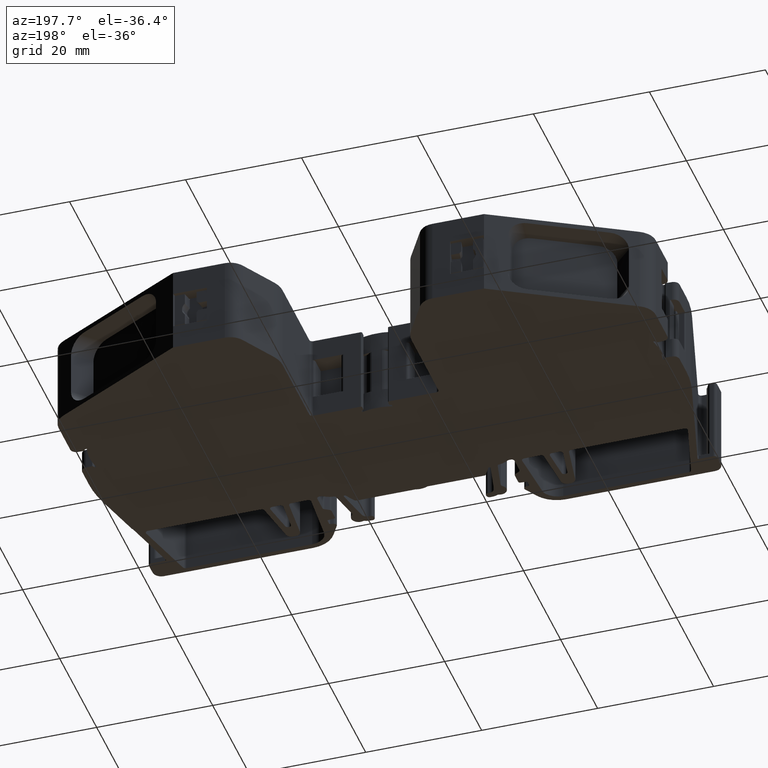
[diagram: clean part render]
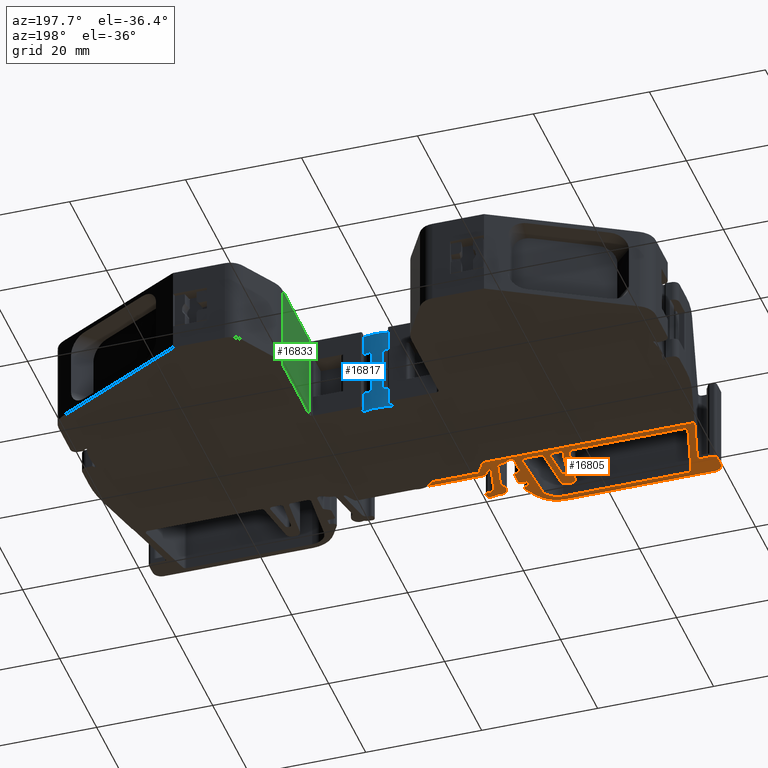
[diagram: same view with three faces highlighted in distinct colors, each labeled with its STEP entity id]
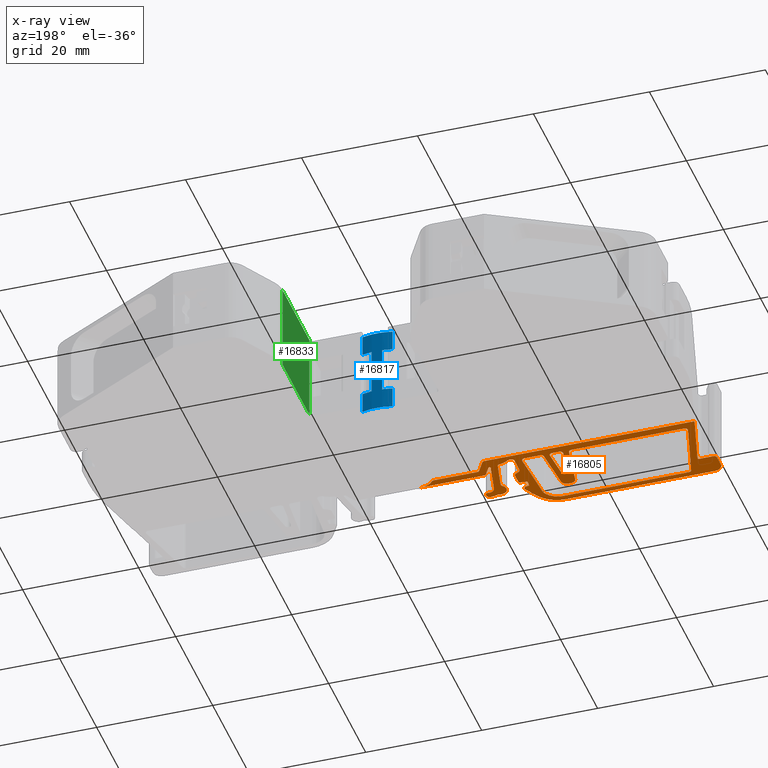
[diagram: x-ray of the same camera — body ghosted, the three highlighted faces saturated]
A machine part, auxiliary view with three faces highlighted in distinct colors.
The next image is the same camera in x-ray (body ghosted, the three faces saturated) — at least one of them is partly hidden behind the body in this view.
Their STEP definitions:

[orange] entity #16805 — the highlighted planar face has unit normal (0, 0, -1).
#221 = CARTESIAN_POINT ( 'NONE',  ( 1283.404054155027300, 406.6542813915525600, 0.1499999999999999900 ) ) ;
#231 = CARTESIAN_POINT ( 'NONE',  ( 1283.282213736102400, 406.3916219096329300, 0.1499999999999999900 ) ) ;
#236 = CARTESIAN_POINT ( 'NONE',  ( 1283.781137230200100, 406.8238270224335300, 0.1500000000000003800 ) ) ;
#237 = CARTESIAN_POINT ( 'NONE',  ( 1283.323190433553900, 406.5244148729309500, 0.1499999999999999900 ) ) ;
#241 = CARTESIAN_POINT ( 'NONE',  ( 1283.529935510989400, 406.7611391028484000, 0.1500000000000000200 ) ) ;
#242 = CARTESIAN_POINT ( 'NONE',  ( 1283.319034003886800, 406.5147372958803700, 0.1500000000000000200 ) ) ;
#245 = CARTESIAN_POINT ( 'NONE',  ( 1283.711878692557500, 406.8227146897673400, 0.1500000000000000500 ) ) ;
#249 = CARTESIAN_POINT ( 'NONE',  ( 1283.474643208768400, 406.7235784559775900, 0.1499999999999999900 ) ) ;
#250 = CARTESIAN_POINT ( 'NONE',  ( 1283.293915685925600, 406.4529710278935100, 0.1499999999999999700 ) ) ;
#251 = CARTESIAN_POINT ( 'NONE',  ( 1283.647786641186700, 406.8099546393170800, 0.1499999999999999900 ) ) ;
#258 = CARTESIAN_POINT ( 'NONE',  ( 1283.281137230200100, 406.3238270224335300, 0.1500000000000004700 ) ) ;
#259 = CARTESIAN_POINT ( 'NONE',  ( 1283.342190548209100, 406.5640756173085600, 0.1499999999999999700 ) ) ;
#263 = CARTESIAN_POINT ( 'NONE',  ( 1283.330603995994100, 406.5404723701004700, 0.1500000000000000200 ) ) ;
#270 = CARTESIAN_POINT ( 'NONE',  ( 1283.372489296599300, 406.6157688709697000, 0.1499999999999999900 ) ) ;
#1005 = CARTESIAN_POINT ( 'NONE',  ( 1317.413249764955300, 406.2846723674579700, 0.1500000000000000200 ) ) ;
#1008 = CARTESIAN_POINT ( 'NONE',  ( 1317.713873902334200, 406.2300500412308100, 0.1499999999999973600 ) ) ;
#1009 = CARTESIAN_POINT ( 'NONE',  ( 1317.597300599301000, 406.3234148438405100, 0.1500000000000000800 ) ) ;
#1010 = CARTESIAN_POINT ( 'NONE',  ( 1317.509911277473500, 406.3285511593550200, 0.1499999999999999900 ) ) ;
#1018 = CARTESIAN_POINT ( 'NONE',  ( 1317.657014958375400, 406.2976470534504800, 0.1499999999999999900 ) ) ;
#1019 = CARTESIAN_POINT ( 'NONE',  ( 1317.438780747533900, 406.3050014367961500, 0.1499999999999999900 ) ) ;
#1020 = CARTESIAN_POINT ( 'NONE',  ( 1317.397026229713700, 406.2694724288718900, 0.1500000000000000200 ) ) ;
#1022 = CARTESIAN_POINT ( 'NONE',  ( 1317.576656509264200, 406.3284102251184300, 0.1500000000000000200 ) ) ;
#1025 = CARTESIAN_POINT ( 'NONE',  ( 1317.388563987565200, 406.2601019156373400, 0.1500000000000000200 ) ) ;
#1027 = CARTESIAN_POINT ( 'NONE',  ( 1317.355735920681600, 406.2186005961746100, 0.1499999999999999900 ) ) ;
#1031 = CARTESIAN_POINT ( 'NONE',  ( 1317.341959508887400, 406.1780165428529000, 0.1500000000000000500 ) ) ;
#1032 = CARTESIAN_POINT ( 'NONE',  ( 1317.340669138804100, 406.1300494917795200, 0.1500000000000004700 ) ) ;
#1047 = CARTESIAN_POINT ( 'NONE',  ( 1317.689866292916300, 406.2691173335361400, 0.1499999999999999900 ) ) ;
#1055 = CARTESIAN_POINT ( 'NONE',  ( 1317.533889721833700, 406.3312132233037300, 0.1500000000000000500 ) ) ;
#1058 = CARTESIAN_POINT ( 'NONE',  ( 1317.467898769261000, 406.3179179905111500, 0.1500000000000000200 ) ) ;
#1066 = CARTESIAN_POINT ( 'NONE',  ( 1318.264458596469900, 398.6454106698988100, 0.1500000000000004700 ) ) ;
#1070 = CARTESIAN_POINT ( 'NONE',  ( 1284.163480708291400, 398.3280000144570200, 0.1500000000000476500 ) ) ;
#1078 = CARTESIAN_POINT ( 'NONE',  ( 1316.618683535193900, 399.8311015867635700, 0.1500000000000004700 ) ) ;
#1087 = CARTESIAN_POINT ( 'NONE',  ( 1318.625242057825300, 404.6515256558540200, 0.1499999999999960500 ) ) ;
#1117 = CARTESIAN_POINT ( 'NONE',  ( 1284.170294537455900, 398.2762399584319700, 0.1500000000000008300 ) ) ;
#1132 = CARTESIAN_POINT ( 'NONE',  ( 1317.340669138804100, 406.1300494917795200, 0.1500000000000004700 ) ) ;
#1134 = CARTESIAN_POINT ( 'NONE',  ( 1305.259025771496000, 406.9426663702594200, 0.1500000000000006100 ) ) ;
#1143 = CARTESIAN_POINT ( 'NONE',  ( 1283.281137230200100, 406.3238270224335300, 0.1500000000000004700 ) ) ;
#1150 = CARTESIAN_POINT ( 'NONE',  ( 1317.713873902334200, 406.2300500412308100, 0.1499999999999973600 ) ) ;
#1152 = CARTESIAN_POINT ( 'NONE',  ( 1283.781137230200100, 406.8238270224335300, 0.1500000000000003800 ) ) ;
#1176 = CARTESIAN_POINT ( 'NONE',  ( 1304.759025771496000, 406.4426663702594700, 0.1500000000000004700 ) ) ;
#1194 = CARTESIAN_POINT ( 'NONE',  ( 1319.868687230490200, 398.4311010272421100, 0.1500000000000006100 ) ) ;
#1222 = CARTESIAN_POINT ( 'NONE',  ( 1320.368682997534700, 399.1310960544146300, 0.1499999999999975800 ) ) ;
#1233 = CARTESIAN_POINT ( 'NONE',  ( 1312.754432585843000, 400.4678497674405000, 0.1500000000000006100 ) ) ;
#1234 = CARTESIAN_POINT ( 'NONE',  ( 1312.754432585842800, 399.7138657706220200, 0.1500000000000006100 ) ) ;
#1275 = CARTESIAN_POINT ( 'NONE',  ( 1320.368680833568300, 398.9310973435266300, 0.1499999999999936700 ) ) ;
#1342 = CARTESIAN_POINT ( 'NONE',  ( 1319.058253966650000, 404.4015270294875100, 0.1500000000000003800 ) ) ;
#1461 = CARTESIAN_POINT ( 'NONE',  ( 1329.980376204197900, 404.4015270295032600, 0.1500000000000004700 ) ) ;
#1480 = CARTESIAN_POINT ( 'NONE',  ( 1281.008613275430000, 395.5762368409324900, 0.1500000000000006100 ) ) ;
#1488 = CARTESIAN_POINT ( 'NONE',  ( 1319.375794603261300, 405.9515308948029400, 0.1499999999999999900 ) ) ;
#1503 = CARTESIAN_POINT ( 'NONE',  ( 1308.357770593826000, 395.0762402979552800, 0.1500000000000008300 ) ) ;
#1514 = CARTESIAN_POINT ( 'NONE',  ( 1283.970293730979400, 398.0762399584336300, 0.1500000000000006100 ) ) ;
#1522 = CARTESIAN_POINT ( 'NONE',  ( 1308.206850678388500, 394.0762368409321500, 0.1500000000000006100 ) ) ;
#1525 = CARTESIAN_POINT ( 'NONE',  ( 1282.508613275430000, 394.0762368409322700, 0.1500000000000008300 ) ) ;
#1538 = CARTESIAN_POINT ( 'NONE',  ( 1312.536975274675800, 396.5762326448109400, 0.1500000000000008300 ) ) ;
#1549 = CARTESIAN_POINT ( 'NONE',  ( 1327.673715993038100, 405.5158004951754300, 0.1500000000000008300 ) ) ;
#1556 = CARTESIAN_POINT ( 'NONE',  ( 1317.764323151788900, 408.2426663702589700, 0.1499999999999999900 ) ) ;
#1579 = CARTESIAN_POINT ( 'NONE',  ( 1318.197335060612400, 407.9926677438873000, 0.1499999999999999900 ) ) ;
#1606 = CARTESIAN_POINT ( 'NONE',  ( 1327.284825929313900, 405.7015322684314900, 0.1500000000000008300 ) ) ;
#1630 = CARTESIAN_POINT ( 'NONE',  ( 1319.808806512085800, 405.7015322684314900, 0.1499999999999999900 ) ) ;
#1638 = CARTESIAN_POINT ( 'NONE',  ( 1281.507060303932600, 408.2426663702594300, 0.1500000000000340000 ) ) ;
#1679 = CARTESIAN_POINT ( 'NONE',  ( 1319.868682997548100, 399.6310997004135300, 0.1500000000000001900 ) ) ;
#1726 = CARTESIAN_POINT ( 'NONE',  ( 1312.919702674176100, 399.5169042687097700, 0.1499999999999936700 ) ) ;
#1753 = CARTESIAN_POINT ( 'NONE',  ( 1312.936997792591900, 400.6670885489288600, 0.1500000000000006100 ) ) ;
#1788 = CARTESIAN_POINT ( 'NONE',  ( 1319.546404916188100, 398.4311010272421100, 0.1500000000000006100 ) ) ;
#1810 = CARTESIAN_POINT ( 'NONE',  ( 1319.579187511195900, 399.6310997004135300, 0.1500000000000006100 ) ) ;
#1813 = CARTESIAN_POINT ( 'NONE',  ( 1318.627067323391900, 398.6274921149935700, 0.1500000000000004700 ) ) ;
#1819 = CARTESIAN_POINT ( 'NONE',  ( 1313.256030882816300, 403.6963345683349800, 0.1500000000000001900 ) ) ;
#1821 = CARTESIAN_POINT ( 'NONE',  ( 1313.783350811080000, 407.3111706435503300, 0.1500000000000006100 ) ) ;
#1824 = CARTESIAN_POINT ( 'NONE',  ( 1306.528775172216000, 406.9426663702592500, 0.1500000000000006100 ) ) ;
#1825 = CARTESIAN_POINT ( 'NONE',  ( 1313.410041973296100, 399.4304424474901800, 0.1499999999999967200 ) ) ;
#1853 = CARTESIAN_POINT ( 'NONE',  ( 1313.506028367696000, 407.3111708574468800, 0.1500000000000006100 ) ) ;
#1865 = CARTESIAN_POINT ( 'NONE',  ( 1317.345409999555400, 406.0867612885399500, 0.1500000000000003800 ) ) ;
#1874 = CARTESIAN_POINT ( 'NONE',  ( 1313.931128761639900, 400.7540613590241500, 0.1500000000000006100 ) ) ;
#1880 = CARTESIAN_POINT ( 'NONE',  ( 1306.050194964375800, 398.0762402979550000, 0.1499999999999988800 ) ) ;
#1883 = CARTESIAN_POINT ( 'NONE',  ( 1281.508619353440100, 398.0762502074480300, 0.1500000000000003800 ) ) ;
#1902 = CARTESIAN_POINT ( 'NONE',  ( 1281.008613275430700, 397.5762478254433200, 0.1500000000000004700 ) ) ;
#1906 = CARTESIAN_POINT ( 'NONE',  ( 1314.204978592112000, 401.0529196315595200, 0.1500000000000003800 ) ) ;
#1907 = CARTESIAN_POINT ( 'NONE',  ( 1317.035220571874100, 400.7626807319623500, 0.1500000000000004700 ) ) ;
#1912 = CARTESIAN_POINT ( 'NONE',  ( 1283.298171813891300, 406.1944268421773400, 0.1499999999999960500 ) ) ;
#1916 = CARTESIAN_POINT ( 'NONE',  ( 1313.953226412754000, 403.2938053100535300, 0.1500000000000001900 ) ) ;
#1917 = CARTESIAN_POINT ( 'NONE',  ( 1306.517191543199900, 398.0762402979551700, 0.1500000000000006100 ) ) ;
#1924 = DIRECTION ( 'NONE',  ( 0.0000000000000000000, 0.0000000000000000000, 1.000000000000000000 ) ) ;
#1946 = CARTESIAN_POINT ( 'NONE',  ( 1283.970294537456100, 398.2762399584319700, 0.1500000000000008300 ) ) ;
#1962 = DIRECTION ( 'NONE',  ( 1.000000000000000000, 0.0000000000000000000, 0.0000000000000000000 ) ) ;
#2064 = DIRECTION ( 'NONE',  ( -1.000000000000000000, 0.0000000000000000000, 0.0000000000000000000 ) ) ;
#2092 = CARTESIAN_POINT ( 'NONE',  ( 1317.868683793267800, 399.8311015867635700, 0.1500000000000008300 ) ) ;
#2097 = DIRECTION ( 'NONE',  ( 0.0000000000000000000, 0.0000000000000000000, -1.000000000000000000 ) ) ;
#2182 = CARTESIAN_POINT ( 'NONE',  ( 1305.189767233844600, 406.9415540375931100, 0.1500000000000000200 ) ) ;
#2201 = CARTESIAN_POINT ( 'NONE',  ( 1305.259025771496000, 406.9426663702594200, 0.1500000000000006100 ) ) ;
#2210 = CARTESIAN_POINT ( 'NONE',  ( 1305.125675182469200, 406.9287939871425700, 0.1499999999999999900 ) ) ;
#2211 = CARTESIAN_POINT ( 'NONE',  ( 1304.759025771496000, 406.4426663702594700, 0.1500000000000004700 ) ) ;
#2215 = CARTESIAN_POINT ( 'NONE',  ( 1304.771804227221800, 406.5718103757327000, 0.1500000000000000500 ) ) ;
#2225 = CARTESIAN_POINT ( 'NONE',  ( 1305.007824052271400, 406.8799784506734900, 0.1500000000000000200 ) ) ;
#2234 = CARTESIAN_POINT ( 'NONE',  ( 1304.881942696324800, 406.7731207393759400, 0.1500000000000000200 ) ) ;
#2235 = CARTESIAN_POINT ( 'NONE',  ( 1304.820079089507800, 406.6829149651314300, 0.1499999999999999900 ) ) ;
#2237 = CARTESIAN_POINT ( 'NONE',  ( 1304.796922545182300, 406.6335766437039200, 0.1500000000000000200 ) ) ;
#2238 = CARTESIAN_POINT ( 'NONE',  ( 1304.760102277398800, 406.5104612574724600, 0.1500000000000000500 ) ) ;
#2240 = CARTESIAN_POINT ( 'NONE',  ( 1304.952531750058600, 406.8424178038054000, 0.1500000000000000200 ) ) ;
#2246 = CARTESIAN_POINT ( 'NONE',  ( 1304.850377837899300, 406.7346082187919500, 0.1499999999999999900 ) ) ;
#2256 = CARTESIAN_POINT ( 'NONE',  ( 1304.808492537291400, 406.6593117179243100, 0.1499999999999999900 ) ) ;
#2257 = CARTESIAN_POINT ( 'NONE',  ( 1304.801078974850500, 406.6432542207554100, 0.1500000000000000200 ) ) ;
#2503 = EDGE_CURVE ( 'NONE', #4996, #5054, #14123, .T. ) ;
#2545 = EDGE_CURVE ( 'NONE', #5020, #5013, #14491, .T. ) ;
#2589 = EDGE_CURVE ( 'NONE', #5003, #5054, #14527, .T. ) ;
#2788 = EDGE_CURVE ( 'NONE', #5020, #12125, #14144, .T. ) ;
#2819 = EDGE_CURVE ( 'NONE', #5003, #12145, #14150, .T. ) ;
#2820 = EDGE_CURVE ( 'NONE', #4996, #12251, #15373, .T. ) ;
#2870 = EDGE_CURVE ( 'NONE', #12286, #5013, #14207, .T. ) ;
#2927 = EDGE_CURVE ( 'NONE', #12286, #12435, #15619, .T. ) ;
#2931 = EDGE_CURVE ( 'NONE', #12407, #12125, #15713, .T. ) ;
#2936 = EDGE_CURVE ( 'NONE', #12393, #12418, #15776, .T. ) ;
#3022 = EDGE_CURVE ( 'NONE', #12382, #12443, #10784, .T. ) ;
#3119 = EDGE_CURVE ( 'NONE', #12422, #12464, #11107, .T. ) ;
#3159 = EDGE_CURVE ( 'NONE', #12367, #12251, #13913, .T. ) ;
#3199 = EDGE_CURVE ( 'NONE', #12431, #12516, #13939, .T. ) ;
#3249 = EDGE_CURVE ( 'NONE', #12386, #4926, #11841, .T. ) ;
#3278 = EDGE_CURVE ( 'NONE', #12658, #12407, #13944, .T. ) ;
#3279 = EDGE_CURVE ( 'NONE', #12670, #12443, #13926, .T. ) ;
#3280 = EDGE_CURVE ( 'NONE', #12378, #12145, #11932, .T. ) ;
#3292 = EDGE_CURVE ( 'NONE', #12435, #12526, #13927, .T. ) ;
#3300 = EDGE_CURVE ( 'NONE', #12689, #12633, #13914, .T. ) ;
#3303 = EDGE_CURVE ( 'NONE', #12699, #12695, #13937, .T. ) ;
#3323 = EDGE_CURVE ( 'NONE', #12594, #12422, #13905, .T. ) ;
#3327 = EDGE_CURVE ( 'NONE', #12645, #12593, #13916, .T. ) ;
#3330 = EDGE_CURVE ( 'NONE', #12660, #12702, #13896, .T. ) ;
#3333 = EDGE_CURVE ( 'NONE', #12697, #12591, #13897, .T. ) ;
#3334 = EDGE_CURVE ( 'NONE', #12367, #4886, #13931, .T. ) ;
#3336 = EDGE_CURVE ( 'NONE', #12418, #12655, #13907, .T. ) ;
#3340 = EDGE_CURVE ( 'NONE', #4903, #12505, #13910, .T. ) ;
#3346 = EDGE_CURVE ( 'NONE', #12464, #12584, #13971, .T. ) ;
#3350 = EDGE_CURVE ( 'NONE', #12687, #12393, #13961, .T. ) ;
#3354 = EDGE_CURVE ( 'NONE', #4906, #12471, #13973, .T. ) ;
#3360 = EDGE_CURVE ( 'NONE', #12598, #12685, #13992, .T. ) ;
#3383 = EDGE_CURVE ( 'NONE', #12651, #12382, #13982, .T. ) ;
#3385 = EDGE_CURVE ( 'NONE', #12492, #12675, #13979, .T. ) ;
#3404 = EDGE_CURVE ( 'NONE', #12631, #12378, #13963, .T. ) ;
#3409 = EDGE_CURVE ( 'NONE', #12662, #12639, #14009, .T. ) ;
#3451 = EDGE_CURVE ( 'NONE', #12701, #12386, #14016, .T. ) ;
#3455 = EDGE_CURVE ( 'NONE', #4915, #12643, #13990, .T. ) ;
#3467 = EDGE_CURVE ( 'NONE', #11325, #11393, #13959, .T. ) ;
#3673 = EDGE_CURVE ( 'NONE', #12431, #11756, #15912, .T. ) ;
#3713 = EDGE_CURVE ( 'NONE', #11707, #12516, #16042, .T. ) ;
#3794 = EDGE_CURVE ( 'NONE', #12593, #4953, #16192, .T. ) ;
#3807 = EDGE_CURVE ( 'NONE', #12639, #12701, #14871, .T. ) ;
#3809 = EDGE_CURVE ( 'NONE', #12695, #12687, #13331, .T. ) ;
#3826 = EDGE_CURVE ( 'NONE', #11750, #12598, #13350, .T. ) ;
#3833 = EDGE_CURVE ( 'NONE', #11325, #4914, #9425, .T. ) ;
#3835 = EDGE_CURVE ( 'NONE', #12702, #11750, #9445, .T. ) ;
#3840 = EDGE_CURVE ( 'NONE', #12591, #12689, #9432, .T. ) ;
#3842 = EDGE_CURVE ( 'NONE', #12685, #12697, #9440, .T. ) ;
#3854 = EDGE_CURVE ( 'NONE', #12594, #12645, #9490, .T. ) ;
#3861 = EDGE_CURVE ( 'NONE', #12505, #12631, #9496, .T. ) ;
#3863 = EDGE_CURVE ( 'NONE', #12675, #12699, #9480, .T. ) ;
#3868 = EDGE_CURVE ( 'NONE', #12471, #12660, #9503, .T. ) ;
#3869 = EDGE_CURVE ( 'NONE', #12670, #12526, #9467, .T. ) ;
#3873 = EDGE_CURVE ( 'NONE', #12655, #12651, #9465, .T. ) ;
#3885 = EDGE_CURVE ( 'NONE', #12643, #12662, #9513, .T. ) ;
#3889 = EDGE_CURVE ( 'NONE', #12633, #12584, #9504, .T. ) ;
#3909 = EDGE_CURVE ( 'NONE', #12492, #4872, #14047, .T. ) ;
#3948 = EDGE_CURVE ( 'NONE', #11647, #11393, #8657, .T. ) ;
#3972 = EDGE_CURVE ( 'NONE', #11763, #11707, #13410, .T. ) ;
#3974 = EDGE_CURVE ( 'NONE', #12658, #11751, #8716, .T. ) ;
#3988 = EDGE_CURVE ( 'NONE', #11751, #11765, #13427, .T. ) ;
#4005 = FACE_BOUND ( 'NONE', #5266, .T. ) ;
#4014 = EDGE_CURVE ( 'NONE', #11765, #11763, #8753, .T. ) ;
#4080 = DIRECTION ( 'NONE',  ( -1.000000000000000000, 0.0000000000000000000, -0.0000000000000000000 ) ) ;
#4091 = FACE_OUTER_BOUND ( 'NONE', #5231, .T. ) ;
#4103 = FACE_BOUND ( 'NONE', #5178, .T. ) ;
#4127 = DIRECTION ( 'NONE',  ( 0.0000000000000000000, 0.0000000000000000000, -1.000000000000000000 ) ) ;
#4153 = CARTESIAN_POINT ( 'NONE',  ( 1375.711379883971900, 395.8762483638510000, 0.1499999999999999900 ) ) ;
#4159 = PLANE ( 'NONE',  #7007 ) ;
#4264 = EDGE_CURVE ( 'NONE', #11981, #11895, #9207, .T. ) ;
#4274 = EDGE_CURVE ( 'NONE', #11956, #11784, #6190, .T. ) ;
#4276 = EDGE_CURVE ( 'NONE', #11895, #11862, #6186, .T. ) ;
#4278 = EDGE_CURVE ( 'NONE', #11756, #4843, #6274, .T. ) ;
#4282 = EDGE_CURVE ( 'NONE', #11647, #11948, #6249, .T. ) ;
#4289 = EDGE_CURVE ( 'NONE', #11946, #11948, #6231, .T. ) ;
#4302 = EDGE_CURVE ( 'NONE', #11981, #4869, #9330, .T. ) ;
#4307 = EDGE_CURVE ( 'NONE', #11862, #11784, #9349, .T. ) ;
#4313 = EDGE_CURVE ( 'NONE', #11956, #11946, #9333, .T. ) ;
#4621 = EDGE_CURVE ( 'NONE', #4953, #4906, #14058, .T. ) ;
#4629 = EDGE_CURVE ( 'NONE', #4843, #4869, #6621, .T. ) ;
#4659 = EDGE_CURVE ( 'NONE', #4886, #4872, #6674, .T. ) ;
#4694 = EDGE_CURVE ( 'NONE', #4926, #4915, #14097, .T. ) ;
#4702 = EDGE_CURVE ( 'NONE', #4914, #4903, #14081, .T. ) ;
#4843 = VERTEX_POINT ( 'NONE', #1117 ) ;
#4869 = VERTEX_POINT ( 'NONE', #1070 ) ;
#4872 = VERTEX_POINT ( 'NONE', #1078 ) ;
#4886 = VERTEX_POINT ( 'NONE', #1066 ) ;
#4903 = VERTEX_POINT ( 'NONE', #1132 ) ;
#4906 = VERTEX_POINT ( 'NONE', #1143 ) ;
#4914 = VERTEX_POINT ( 'NONE', #1150 ) ;
#4915 = VERTEX_POINT ( 'NONE', #1176 ) ;
#4926 = VERTEX_POINT ( 'NONE', #1134 ) ;
#4953 = VERTEX_POINT ( 'NONE', #1152 ) ;
#4996 = VERTEX_POINT ( 'NONE', #1194 ) ;
#5003 = VERTEX_POINT ( 'NONE', #1222 ) ;
#5013 = VERTEX_POINT ( 'NONE', #1233 ) ;
#5020 = VERTEX_POINT ( 'NONE', #1234 ) ;
#5054 = VERTEX_POINT ( 'NONE', #1275 ) ;
#5178 = EDGE_LOOP ( 'NONE', ( #7416, #7374, #7381, #7373, #7396, #7402, #7401 ) ) ;
#5231 = EDGE_LOOP ( 'NONE', ( #7475, #7407, #7487, #7476, #7496, #7439, #7490, #7434, #7452, #7489, #7474, #7418, #7435, #7420, #7447, #7492, #7458, #7378, #7440, #7437, #7466, #7477, #7493, #7415, #7405, #7392, #7464, #7454, #7436, #7486, #7497, #7448, #7461, #7488, #7472, #7455, #7456, #7406, #7446, #7444, #7480, #7443, #7449, #7450, #7438, #7453, #7467, #7552, #7517, #7509, #7482, #7462 ) ) ;
#5266 = EDGE_LOOP ( 'NONE', ( #7410, #7457, #7469, #7495, #7391, #7479, #7478, #7460, #7442, #7419, #7468, #7485, #7491, #7470, #7441, #7481, #7473, #7445 ) ) ;
#6157 = AXIS2_PLACEMENT_3D ( 'NONE', #9245, #9281, #9265 ) ;
#6175 = AXIS2_PLACEMENT_3D ( 'NONE', #9282, #9278, #9269 ) ;
#6183 = VECTOR ( 'NONE', #9225, 1000.000000000000000 ) ;
#6186 = CIRCLE ( 'NONE', #6175, 0.4999999999999449300 ) ;
#6190 = CIRCLE ( 'NONE', #6157, 0.5000000000001669800 ) ;
#6231 = CIRCLE ( 'NONE', #6261, 0.4999999999999449300 ) ;
#6236 = VECTOR ( 'NONE', #9398, 1000.000000000000000 ) ;
#6240 = VECTOR ( 'NONE', #9360, 1000.000000000000100 ) ;
#6249 = CIRCLE ( 'NONE', #6258, 3.000004023891556000 ) ;
#6258 = AXIS2_PLACEMENT_3D ( 'NONE', #9250, #9272, #9243 ) ;
#6261 = AXIS2_PLACEMENT_3D ( 'NONE', #9311, #9316, #9321 ) ;
#6265 = VECTOR ( 'NONE', #9336, 1000.000000000000200 ) ;
#6266 = AXIS2_PLACEMENT_3D ( 'NONE', #9270, #9275, #9274 ) ;
#6274 = CIRCLE ( 'NONE', #6266, 0.1999999999999779700 ) ;
#6621 = CIRCLE ( 'NONE', #6690, 0.1999999999999779700 ) ;
#6654 = AXIS2_PLACEMENT_3D ( 'NONE', #2092, #2097, #2064 ) ;
#6674 = CIRCLE ( 'NONE', #6654, 1.250000258073980000 ) ;
#6690 = AXIS2_PLACEMENT_3D ( 'NONE', #1946, #1924, #1962 ) ;
#7007 = AXIS2_PLACEMENT_3D ( 'NONE', #4153, #4127, #4080 ) ;
#7373 = ORIENTED_EDGE ( 'NONE', *, *, #3455, .T. ) ;
#7374 = ORIENTED_EDGE ( 'NONE', *, *, #3249, .T. ) ;
#7378 = ORIENTED_EDGE ( 'NONE', *, *, #3340, .T. ) ;
#7381 = ORIENTED_EDGE ( 'NONE', *, *, #4694, .T. ) ;
#7391 = ORIENTED_EDGE ( 'NONE', *, *, #3794, .T. ) ;
#7392 = ORIENTED_EDGE ( 'NONE', *, *, #3159, .F. ) ;
#7396 = ORIENTED_EDGE ( 'NONE', *, *, #3885, .T. ) ;
#7401 = ORIENTED_EDGE ( 'NONE', *, *, #3807, .T. ) ;
#7402 = ORIENTED_EDGE ( 'NONE', *, *, #3409, .T. ) ;
#7405 = ORIENTED_EDGE ( 'NONE', *, *, #2820, .T. ) ;
#7406 = ORIENTED_EDGE ( 'NONE', *, *, #3383, .T. ) ;
#7407 = ORIENTED_EDGE ( 'NONE', *, *, #3199, .F. ) ;
#7410 = ORIENTED_EDGE ( 'NONE', *, *, #3119, .F. ) ;
#7415 = ORIENTED_EDGE ( 'NONE', *, *, #2503, .F. ) ;
#7416 = ORIENTED_EDGE ( 'NONE', *, *, #3451, .T. ) ;
#7418 = ORIENTED_EDGE ( 'NONE', *, *, #4289, .T. ) ;
#7419 = ORIENTED_EDGE ( 'NONE', *, *, #3835, .T. ) ;
#7420 = ORIENTED_EDGE ( 'NONE', *, *, #3948, .T. ) ;
#7434 = ORIENTED_EDGE ( 'NONE', *, *, #4276, .T. ) ;
#7435 = ORIENTED_EDGE ( 'NONE', *, *, #4282, .F. ) ;
#7436 = ORIENTED_EDGE ( 'NONE', *, *, #3909, .F. ) ;
#7437 = ORIENTED_EDGE ( 'NONE', *, *, #3404, .T. ) ;
#7438 = ORIENTED_EDGE ( 'NONE', *, *, #2545, .F. ) ;
#7439 = ORIENTED_EDGE ( 'NONE', *, *, #4302, .F. ) ;
#7440 = ORIENTED_EDGE ( 'NONE', *, *, #3861, .T. ) ;
#7441 = ORIENTED_EDGE ( 'NONE', *, *, #3840, .T. ) ;
#7442 = ORIENTED_EDGE ( 'NONE', *, *, #3330, .T. ) ;
#7443 = ORIENTED_EDGE ( 'NONE', *, *, #3292, .F. ) ;
#7444 = ORIENTED_EDGE ( 'NONE', *, *, #3279, .F. ) ;
#7445 = ORIENTED_EDGE ( 'NONE', *, *, #3346, .F. ) ;
#7446 = ORIENTED_EDGE ( 'NONE', *, *, #3022, .T. ) ;
#7447 = ORIENTED_EDGE ( 'NONE', *, *, #3467, .F. ) ;
#7448 = ORIENTED_EDGE ( 'NONE', *, *, #3303, .T. ) ;
#7449 = ORIENTED_EDGE ( 'NONE', *, *, #2927, .F. ) ;
#7450 = ORIENTED_EDGE ( 'NONE', *, *, #2870, .T. ) ;
#7452 = ORIENTED_EDGE ( 'NONE', *, *, #4307, .T. ) ;
#7453 = ORIENTED_EDGE ( 'NONE', *, *, #2788, .T. ) ;
#7454 = ORIENTED_EDGE ( 'NONE', *, *, #4659, .T. ) ;
#7455 = ORIENTED_EDGE ( 'NONE', *, *, #3336, .T. ) ;
#7456 = ORIENTED_EDGE ( 'NONE', *, *, #3873, .T. ) ;
#7457 = ORIENTED_EDGE ( 'NONE', *, *, #3323, .F. ) ;
#7458 = ORIENTED_EDGE ( 'NONE', *, *, #4702, .T. ) ;
#7460 = ORIENTED_EDGE ( 'NONE', *, *, #3868, .T. ) ;
#7461 = ORIENTED_EDGE ( 'NONE', *, *, #3809, .T. ) ;
#7462 = ORIENTED_EDGE ( 'NONE', *, *, #3972, .T. ) ;
#7464 = ORIENTED_EDGE ( 'NONE', *, *, #3334, .T. ) ;
#7466 = ORIENTED_EDGE ( 'NONE', *, *, #3280, .T. ) ;
#7467 = ORIENTED_EDGE ( 'NONE', *, *, #2931, .F. ) ;
#7468 = ORIENTED_EDGE ( 'NONE', *, *, #3826, .T. ) ;
#7469 = ORIENTED_EDGE ( 'NONE', *, *, #3854, .T. ) ;
#7470 = ORIENTED_EDGE ( 'NONE', *, *, #3333, .T. ) ;
#7472 = ORIENTED_EDGE ( 'NONE', *, *, #2936, .T. ) ;
#7473 = ORIENTED_EDGE ( 'NONE', *, *, #3889, .T. ) ;
#7474 = ORIENTED_EDGE ( 'NONE', *, *, #4313, .T. ) ;
#7475 = ORIENTED_EDGE ( 'NONE', *, *, #3713, .T. ) ;
#7476 = ORIENTED_EDGE ( 'NONE', *, *, #4278, .T. ) ;
#7477 = ORIENTED_EDGE ( 'NONE', *, *, #2819, .F. ) ;
#7478 = ORIENTED_EDGE ( 'NONE', *, *, #3354, .T. ) ;
#7479 = ORIENTED_EDGE ( 'NONE', *, *, #4621, .T. ) ;
#7480 = ORIENTED_EDGE ( 'NONE', *, *, #3869, .T. ) ;
#7481 = ORIENTED_EDGE ( 'NONE', *, *, #3300, .T. ) ;
#7482 = ORIENTED_EDGE ( 'NONE', *, *, #4014, .T. ) ;
#7485 = ORIENTED_EDGE ( 'NONE', *, *, #3360, .T. ) ;
#7486 = ORIENTED_EDGE ( 'NONE', *, *, #3385, .T. ) ;
#7487 = ORIENTED_EDGE ( 'NONE', *, *, #3673, .T. ) ;
#7488 = ORIENTED_EDGE ( 'NONE', *, *, #3350, .T. ) ;
#7489 = ORIENTED_EDGE ( 'NONE', *, *, #4274, .F. ) ;
#7490 = ORIENTED_EDGE ( 'NONE', *, *, #4264, .T. ) ;
#7491 = ORIENTED_EDGE ( 'NONE', *, *, #3842, .T. ) ;
#7492 = ORIENTED_EDGE ( 'NONE', *, *, #3833, .T. ) ;
#7493 = ORIENTED_EDGE ( 'NONE', *, *, #2589, .T. ) ;
#7495 = ORIENTED_EDGE ( 'NONE', *, *, #3327, .T. ) ;
#7496 = ORIENTED_EDGE ( 'NONE', *, *, #4629, .T. ) ;
#7497 = ORIENTED_EDGE ( 'NONE', *, *, #3863, .T. ) ;
#7509 = ORIENTED_EDGE ( 'NONE', *, *, #3988, .T. ) ;
#7517 = ORIENTED_EDGE ( 'NONE', *, *, #3974, .T. ) ;
#7552 = ORIENTED_EDGE ( 'NONE', *, *, #3278, .F. ) ;
#8593 = CARTESIAN_POINT ( 'NONE',  ( 1316.618683535193900, 400.0062952554533800, 0.1500000000000008300 ) ) ;
#8600 = CARTESIAN_POINT ( 'NONE',  ( 1316.656047990831200, 400.1813984285738600, 0.1500000000000008300 ) ) ;
#8607 = CARTESIAN_POINT ( 'NONE',  ( 1316.618683535193900, 399.8311015867635700, 0.1500000000000004700 ) ) ;
#8614 = CARTESIAN_POINT ( 'NONE',  ( 1316.799070754310600, 400.5012668004437200, 0.1500000000000008000 ) ) ;
#8631 = CARTESIAN_POINT ( 'NONE',  ( 1375.711379883971900, 404.4015270295012100, 0.1499999999999999900 ) ) ;
#8638 = DIRECTION ( 'NONE',  ( -1.000000000000000000, 0.0000000000000000000, -0.0000000000000000000 ) ) ;
#8657 = LINE ( 'NONE', #8631, #13380 ) ;
#8673 = DIRECTION ( 'NONE',  ( 0.0000000000000000000, 0.0000000000000000000, -1.000000000000000000 ) ) ;
#8675 = CARTESIAN_POINT ( 'NONE',  ( 1308.206850678388500, 399.0762368409321000, 0.1500000000000008300 ) ) ;
#8676 = DIRECTION ( 'NONE',  ( -0.5000008392242157900, -0.8660249192575696400, 0.0000000000000000000 ) ) ;
#8678 = DIRECTION ( 'NONE',  ( 0.0000000000000000000, 0.0000000000000000000, -1.000000000000000000 ) ) ;
#8689 = DIRECTION ( 'NONE',  ( -1.000000000000000000, 0.0000000000000000000, 0.0000000000000000000 ) ) ;
#8692 = CARTESIAN_POINT ( 'NONE',  ( 1282.508613275430000, 395.5762368409324900, 0.1500000000000008300 ) ) ;
#8693 = CARTESIAN_POINT ( 'NONE',  ( 1313.756229560717900, 398.6880382895019500, 0.1499999999999999900 ) ) ;
#8713 = DIRECTION ( 'NONE',  ( -1.000000000000000000, 0.0000000000000000000, 0.0000000000000000000 ) ) ;
#8716 = LINE ( 'NONE', #8693, #13423 ) ;
#8723 = DIRECTION ( 'NONE',  ( -1.000000000000000000, 0.0000000000000000000, -0.0000000000000000000 ) ) ;
#8753 = LINE ( 'NONE', #8757, #13420 ) ;
#8757 = CARTESIAN_POINT ( 'NONE',  ( 1375.711379883971900, 394.0762368409321500, 0.1499999999999999900 ) ) ;
#9207 = LINE ( 'NONE', #9227, #6183 ) ;
#9225 = DIRECTION ( 'NONE',  ( 1.000000000000000000, -1.224828282580384200E-014, -0.0000000000000000000 ) ) ;
#9227 = CARTESIAN_POINT ( 'NONE',  ( 1281.507060303930100, 408.2426663702594900, 0.1500000000000175900 ) ) ;
#9243 = DIRECTION ( 'NONE',  ( -1.000000000000000000, 0.0000000000000000000, 0.0000000000000000000 ) ) ;
#9245 = CARTESIAN_POINT ( 'NONE',  ( 1319.808806512085800, 406.2015322684314900, 0.1499999999999999900 ) ) ;
#9250 = CARTESIAN_POINT ( 'NONE',  ( 1330.007059505064300, 407.4014123847885000, 0.1500000000000008300 ) ) ;
#9265 = DIRECTION ( 'NONE',  ( -1.000000000000000000, 0.0000000000000000000, 0.0000000000000000000 ) ) ;
#9269 = DIRECTION ( 'NONE',  ( -1.000000000000000000, 0.0000000000000000000, 0.0000000000000000000 ) ) ;
#9270 = CARTESIAN_POINT ( 'NONE',  ( 1283.970294537456100, 398.2762399584319700, 0.1500000000000008300 ) ) ;
#9272 = DIRECTION ( 'NONE',  ( 0.0000000000000000000, 0.0000000000000000000, -1.000000000000000000 ) ) ;
#9274 = DIRECTION ( 'NONE',  ( 1.000000000000000000, 0.0000000000000000000, 0.0000000000000000000 ) ) ;
#9275 = DIRECTION ( 'NONE',  ( 0.0000000000000000000, 0.0000000000000000000, 1.000000000000000000 ) ) ;
#9278 = DIRECTION ( 'NONE',  ( 0.0000000000000000000, 0.0000000000000000000, -1.000000000000000000 ) ) ;
#9281 = DIRECTION ( 'NONE',  ( 0.0000000000000000000, 0.0000000000000000000, -1.000000000000000000 ) ) ;
#9282 = CARTESIAN_POINT ( 'NONE',  ( 1317.764323151790000, 407.7426663702589700, 0.1499999999999999900 ) ) ;
#9311 = CARTESIAN_POINT ( 'NONE',  ( 1327.284825929313900, 405.2015322684314900, 0.1500000000000008300 ) ) ;
#9316 = DIRECTION ( 'NONE',  ( 0.0000000000000000000, 0.0000000000000000000, -1.000000000000000000 ) ) ;
#9321 = DIRECTION ( 'NONE',  ( -1.000000000000000000, 0.0000000000000000000, 0.0000000000000000000 ) ) ;
#9330 = LINE ( 'NONE', #9362, #6265 ) ;
#9333 = LINE ( 'NONE', #9390, #6236 ) ;
#9336 = DIRECTION ( 'NONE',  ( 0.2588002801200688900, -0.9659308541556034200, 0.0000000000000000000 ) ) ;
#9343 = CARTESIAN_POINT ( 'NONE',  ( 1318.197335060612000, 407.9926677438879800, 0.1499999999999999900 ) ) ;
#9349 = LINE ( 'NONE', #9343, #6240 ) ;
#9360 = DIRECTION ( 'NONE',  ( 0.5000027472571180200, -0.8660238176489919400, -0.0000000000000000000 ) ) ;
#9362 = CARTESIAN_POINT ( 'NONE',  ( 1279.188440239205600, 416.8965467236529300, 0.1500000000000667500 ) ) ;
#9390 = CARTESIAN_POINT ( 'NONE',  ( 1319.808806512085800, 405.7015322684314900, 0.1499999999999999900 ) ) ;
#9398 = DIRECTION ( 'NONE',  ( 1.000000000000000000, 1.088640402811162000E-014, -0.0000000000000000000 ) ) ;
#9420 = DIRECTION ( 'NONE',  ( -1.000000000000000000, 0.0000000000000000000, 0.0000000000000000000 ) ) ;
#9425 = LINE ( 'NONE', #9452, #13321 ) ;
#9430 = DIRECTION ( 'NONE',  ( -0.5000027472578133500, 0.8660238176485904900, 0.0000000000000000000 ) ) ;
#9431 = DIRECTION ( 'NONE',  ( 1.000000000000000000, -0.0000000000000000000, 0.0000000000000000000 ) ) ;
#9432 = LINE ( 'NONE', #9433, #13343 ) ;
#9433 = CARTESIAN_POINT ( 'NONE',  ( 1375.711379883971900, 406.9426663702594700, 0.1499999999999999900 ) ) ;
#9440 = LINE ( 'NONE', #9446, #13351 ) ;
#9443 = DIRECTION ( 'NONE',  ( 0.06944289846860692000, 0.9975859280544601100, 0.0000000000000000000 ) ) ;
#9445 = LINE ( 'NONE', #9455, #13304 ) ;
#9446 = CARTESIAN_POINT ( 'NONE',  ( 1311.194281895961500, 397.3968473904645300, 0.1499999999999999900 ) ) ;
#9449 = DIRECTION ( 'NONE',  ( -0.0000000000000000000, -0.0000000000000000000, 1.000000000000000000 ) ) ;
#9452 = CARTESIAN_POINT ( 'NONE',  ( 1318.625242057825300, 404.6515256558541300, 0.1499999999999999900 ) ) ;
#9453 = CARTESIAN_POINT ( 'NONE',  ( 1308.357770593826000, 398.0762402979550000, 0.1500000000000008300 ) ) ;
#9454 = DIRECTION ( 'NONE',  ( -1.000000000000000000, 0.0000000000000000000, -0.0000000000000000000 ) ) ;
#9455 = CARTESIAN_POINT ( 'NONE',  ( 1375.711379883971900, 395.0762402979554500, 0.1499999999999999900 ) ) ;
#9456 = CARTESIAN_POINT ( 'NONE',  ( 1317.345409999555600, 406.0867612885399500, 0.1499999999999999900 ) ) ;
#9458 = CARTESIAN_POINT ( 'NONE',  ( 1283.298171813890800, 406.1944268421772200, 0.1499999999999999900 ) ) ;
#9461 = DIRECTION ( 'NONE',  ( 0.2588003605136552900, -0.9659308326158773100, 0.0000000000000000000 ) ) ;
#9464 = CARTESIAN_POINT ( 'NONE',  ( 1305.065386814161900, 398.9025943729451500, 0.1499999999999999900 ) ) ;
#9465 = LINE ( 'NONE', #9475, #13335 ) ;
#9467 = LINE ( 'NONE', #9469, #13327 ) ;
#9468 = CARTESIAN_POINT ( 'NONE',  ( 1317.189982934355200, 401.2435315397293600, 0.1499999999999999900 ) ) ;
#9469 = CARTESIAN_POINT ( 'NONE',  ( 1314.204978592111500, 395.8762483638510000, 0.1499999999999999900 ) ) ;
#9471 = DIRECTION ( 'NONE',  ( -0.0000000000000000000, -1.000000000000000000, -0.0000000000000000000 ) ) ;
#9475 = CARTESIAN_POINT ( 'NONE',  ( 1313.006030052549700, 395.8762483638510000, 0.1499999999999999900 ) ) ;
#9476 = DIRECTION ( 'NONE',  ( -0.0000000000000000000, -1.000000000000000000, -0.0000000000000000000 ) ) ;
#9480 = LINE ( 'NONE', #9468, #13349 ) ;
#9487 = DIRECTION ( 'NONE',  ( 0.2164398668387066100, -0.9762959510531849000, 0.0000000000000000000 ) ) ;
#9490 = LINE ( 'NONE', #9464, #13310 ) ;
#9492 = DIRECTION ( 'NONE',  ( -0.1736459250103066500, 0.9848081502136926100, 0.0000000000000000000 ) ) ;
#9496 = LINE ( 'NONE', #9456, #13306 ) ;
#9498 = DIRECTION ( 'NONE',  ( -0.2164402614427837800, 0.9762958635713762100, 0.0000000000000000000 ) ) ;
#9503 = LINE ( 'NONE', #9458, #13328 ) ;
#9504 = LINE ( 'NONE', #9529, #13365 ) ;
#9512 = CARTESIAN_POINT ( 'NONE',  ( 1317.035220571874100, 400.7626807319623500, 0.1500000000000004700 ) ) ;
#9513 = LINE ( 'NONE', #9533, #13361 ) ;
#9529 = CARTESIAN_POINT ( 'NONE',  ( 1308.034822265496100, 406.4773884769650200, 0.1499999999999999900 ) ) ;
#9531 = CARTESIAN_POINT ( 'NONE',  ( 1316.904655184332800, 400.6458667725003100, 0.1500000000000008500 ) ) ;
#9533 = CARTESIAN_POINT ( 'NONE',  ( 1304.766621696389600, 406.3558434077538700, 0.1499999999999999900 ) ) ;
#9540 = DIRECTION ( 'NONE',  ( 0.1736459250102989900, -0.9848081502136940600, 0.0000000000000000000 ) ) ;
#9542 = DIRECTION ( 'NONE',  ( -0.06944421341107479000, -0.9975858365192025200, 0.0000000000000000000 ) ) ;
#10346 = CARTESIAN_POINT ( 'NONE',  ( 1318.602886194879400, 400.4146596744903400, 0.1500000000000003800 ) ) ;
#10364 = CARTESIAN_POINT ( 'NONE',  ( 1310.881788931906200, 396.4547189662935700, 0.1500000000000004700 ) ) ;
#10366 = CARTESIAN_POINT ( 'NONE',  ( 1308.034822265496100, 406.4773884769650200, 0.1500000000000003800 ) ) ;
#10367 = CARTESIAN_POINT ( 'NONE',  ( 1303.249127669932000, 406.8238270224334800, 0.1499999999999995200 ) ) ;
#10373 = CARTESIAN_POINT ( 'NONE',  ( 1303.741531745039300, 406.4106499849384600, 0.1499999999999956400 ) ) ;
#10378 = CARTESIAN_POINT ( 'NONE',  ( 1311.322759940182600, 406.9426663702594700, 0.1499999999999995200 ) ) ;
#10379 = CARTESIAN_POINT ( 'NONE',  ( 1305.065386814161900, 398.9025943729451500, 0.1499999999999943300 ) ) ;
#10382 = CARTESIAN_POINT ( 'NONE',  ( 1307.514777379718000, 399.0067960845439600, 0.1500000000000003800 ) ) ;
#10398 = CARTESIAN_POINT ( 'NONE',  ( 1306.668166390935800, 401.2450368380149800, 0.1499999999999990800 ) ) ;
#10402 = CARTESIAN_POINT ( 'NONE',  ( 1304.766621696389400, 406.3558434077538700, 0.1499999999999965000 ) ) ;
#10414 = CARTESIAN_POINT ( 'NONE',  ( 1286.177876221532000, 395.4463920610831500, 0.1499999999999934400 ) ) ;
#10417 = CARTESIAN_POINT ( 'NONE',  ( 1316.058165235876900, 406.3488152331402700, 0.1500000000000003800 ) ) ;
#10419 = CARTESIAN_POINT ( 'NONE',  ( 1314.075556275398000, 407.2168956166078700, 0.1500000000000004700 ) ) ;
#10428 = CARTESIAN_POINT ( 'NONE',  ( 1311.821552904209700, 406.4079449210246900, 0.1499999999999956400 ) ) ;
#10430 = CARTESIAN_POINT ( 'NONE',  ( 1317.189982934354900, 401.2435315397293000, 0.1500000000000003800 ) ) ;
#10436 = CARTESIAN_POINT ( 'NONE',  ( 1305.676969397568900, 401.1929359822152000, 0.1499999999999951900 ) ) ;
#10449 = CARTESIAN_POINT ( 'NONE',  ( 1307.027568090475600, 406.4079442635535300, 0.1500000000000003800 ) ) ;
#10450 = CARTESIAN_POINT ( 'NONE',  ( 1313.006030052549500, 406.8111726272044800, 0.1500000000000004700 ) ) ;
#10452 = CARTESIAN_POINT ( 'NONE',  ( 1313.756229560717900, 398.6880382895019500, 0.1499999999999995200 ) ) ;
#10455 = CARTESIAN_POINT ( 'NONE',  ( 1286.660721367909900, 395.0762402979554500, 0.1499999999999990800 ) ) ;
#10457 = CARTESIAN_POINT ( 'NONE',  ( 1308.533615183756000, 406.9426663702594200, 0.1500000000000003800 ) ) ;
#10458 = CARTESIAN_POINT ( 'NONE',  ( 1314.204978592111500, 402.8577595632280000, 0.1500000000000003800 ) ) ;
#10460 = CARTESIAN_POINT ( 'NONE',  ( 1313.006030052550400, 404.1293463103962700, 0.1500000000000004700 ) ) ;
#10461 = CARTESIAN_POINT ( 'NONE',  ( 1311.194281895961200, 397.3968473904645300, 0.1499999999999951900 ) ) ;
#10462 = CARTESIAN_POINT ( 'NONE',  ( 1315.790489405206700, 406.5828185780547400, 0.1500000000000004700 ) ) ;
#10784 = LINE ( 'NONE', #10809, #13652 ) ;
#10809 = CARTESIAN_POINT ( 'NONE',  ( 1357.203609158576000, 378.3229847303679800, 0.1499999999999990800 ) ) ;
#10821 = DIRECTION ( 'NONE',  ( 0.8660236657157240900, -0.5000030104112371800, 0.0000000000000000000 ) ) ;
#11107 = LINE ( 'NONE', #11162, #13673 ) ;
#11131 = DIRECTION ( 'NONE',  ( 1.000000000000000000, 1.188684323366580000E-013, 0.0000000000000000000 ) ) ;
#11162 = CARTESIAN_POINT ( 'NONE',  ( 1330.007058478284100, 398.0762402979580100, 0.1500000000000008300 ) ) ;
#11300 = CARTESIAN_POINT ( 'NONE',  ( 1319.546404916188100, 398.4311010272421100, 0.1500000000000006100 ) ) ;
#11302 = CARTESIAN_POINT ( 'NONE',  ( 1318.915198107195700, 398.4985041465564600, 0.1500000000000008300 ) ) ;
#11304 = CARTESIAN_POINT ( 'NONE',  ( 1319.230719559264100, 398.4311017019417700, 0.1500000000000008300 ) ) ;
#11325 = VERTEX_POINT ( 'NONE', #1087 ) ;
#11375 = CARTESIAN_POINT ( 'NONE',  ( 1318.627067323391900, 398.6274921149935700, 0.1500000000000004700 ) ) ;
#11393 = VERTEX_POINT ( 'NONE', #1342 ) ;
#11397 = CARTESIAN_POINT ( 'NONE',  ( 1281.247623168969300, 398.0223648020239000, 0.1500000000000008000 ) ) ;
#11409 = CARTESIAN_POINT ( 'NONE',  ( 1281.062500609344400, 397.8372436102577600, 0.1500000000000008300 ) ) ;
#11421 = CARTESIAN_POINT ( 'NONE',  ( 1281.008613275431600, 397.7071487576020000, 0.1500000000000008300 ) ) ;
#11474 = CARTESIAN_POINT ( 'NONE',  ( 1281.377718419792500, 398.0762511746699500, 0.1500000000000008500 ) ) ;
#11497 = CARTESIAN_POINT ( 'NONE',  ( 1281.008613275430700, 397.5762478254433200, 0.1500000000000004700 ) ) ;
#11510 = CARTESIAN_POINT ( 'NONE',  ( 1281.508619353440100, 398.0762502074480300, 0.1500000000000003800 ) ) ;
#11647 = VERTEX_POINT ( 'NONE', #1461 ) ;
#11707 = VERTEX_POINT ( 'NONE', #1480 ) ;
#11750 = VERTEX_POINT ( 'NONE', #1503 ) ;
#11751 = VERTEX_POINT ( 'NONE', #1538 ) ;
#11756 = VERTEX_POINT ( 'NONE', #1514 ) ;
#11763 = VERTEX_POINT ( 'NONE', #1525 ) ;
#11765 = VERTEX_POINT ( 'NONE', #1522 ) ;
#11784 = VERTEX_POINT ( 'NONE', #1488 ) ;
#11793 = DIRECTION ( 'NONE',  ( -1.000000000000000000, 2.185909723596815000E-013, 0.0000000000000000000 ) ) ;
#11839 = CARTESIAN_POINT ( 'NONE',  ( 1330.007058478310700, 406.9426663702540200, 0.1500000000000008300 ) ) ;
#11841 = LINE ( 'NONE', #11839, #13706 ) ;
#11862 = VERTEX_POINT ( 'NONE', #1579 ) ;
#11868 = CARTESIAN_POINT ( 'NONE',  ( 1313.564134764163600, 399.3834124360986900, 0.1499999999999973600 ) ) ;
#11870 = CARTESIAN_POINT ( 'NONE',  ( 1330.007058478292000, 399.6310997004134700, 0.1500000000000008300 ) ) ;
#11878 = CARTESIAN_POINT ( 'NONE',  ( 1313.796226743587600, 398.7573152873536600, 0.1499999999999973900 ) ) ;
#11882 = CARTESIAN_POINT ( 'NONE',  ( 1314.204978592111500, 402.8577595632280000, 0.1500000000000003800 ) ) ;
#11886 = CARTESIAN_POINT ( 'NONE',  ( 1314.204978568838700, 402.9456374009860200, 0.1500000000000008500 ) ) ;
#11890 = CARTESIAN_POINT ( 'NONE',  ( 1314.181460791702900, 403.0334065766145400, 0.1500000000000008000 ) ) ;
#11895 = VERTEX_POINT ( 'NONE', #1556 ) ;
#11899 = CARTESIAN_POINT ( 'NONE',  ( 1314.029330999760500, 403.2498666459227400, 0.1500000000000008300 ) ) ;
#11901 = CARTESIAN_POINT ( 'NONE',  ( 1313.488820890547000, 399.4165514696405800, 0.1499999999999973600 ) ) ;
#11915 = CARTESIAN_POINT ( 'NONE',  ( 1313.410041973296100, 399.4304424474901800, 0.1499999999999967200 ) ) ;
#11926 = CARTESIAN_POINT ( 'NONE',  ( 1313.953226412754000, 403.2938053100535300, 0.1500000000000001900 ) ) ;
#11928 = CARTESIAN_POINT ( 'NONE',  ( 1313.742564334824200, 399.2218466981282700, 0.1499999999999973900 ) ) ;
#11930 = CARTESIAN_POINT ( 'NONE',  ( 1313.691062005843200, 399.2860174485740000, 0.1499999999999973600 ) ) ;
#11932 = LINE ( 'NONE', #11870, #13721 ) ;
#11935 = DIRECTION ( 'NONE',  ( 1.000000000000000000, 0.0000000000000000000, 0.0000000000000000000 ) ) ;
#11943 = CARTESIAN_POINT ( 'NONE',  ( 1313.756229560717900, 398.6880382895019500, 0.1499999999999995200 ) ) ;
#11946 = VERTEX_POINT ( 'NONE', #1606 ) ;
#11948 = VERTEX_POINT ( 'NONE', #1549 ) ;
#11949 = CARTESIAN_POINT ( 'NONE',  ( 1314.093582679043000, 403.1856152977558200, 0.1500000000000008300 ) ) ;
#11951 = CARTESIAN_POINT ( 'NONE',  ( 1313.819251798116100, 398.8363103629419600, 0.1499999999999973600 ) ) ;
#11954 = CARTESIAN_POINT ( 'NONE',  ( 1313.810178195336400, 399.0768478217809700, 0.1499999999999973600 ) ) ;
#11956 = VERTEX_POINT ( 'NONE', #1630 ) ;
#11976 = CARTESIAN_POINT ( 'NONE',  ( 1313.826230576594100, 398.9961465444724800, 0.1499999999999973300 ) ) ;
#11981 = VERTEX_POINT ( 'NONE', #1638 ) ;
#12031 = CARTESIAN_POINT ( 'NONE',  ( 1313.931128761639900, 400.7540613590241500, 0.1500000000000006100 ) ) ;
#12043 = CARTESIAN_POINT ( 'NONE',  ( 1314.005022355259100, 400.7605271103767600, 0.1500000000000008500 ) ) ;
#12096 = CARTESIAN_POINT ( 'NONE',  ( 1308.040327136164000, 406.5421607516455000, 0.1500000000000000200 ) ) ;
#12101 = CARTESIAN_POINT ( 'NONE',  ( 1308.106787923791400, 406.7037440827887700, 0.1500000000000000200 ) ) ;
#12112 = CARTESIAN_POINT ( 'NONE',  ( 1308.169431554355900, 406.7870782598699300, 0.1500000000000000200 ) ) ;
#12114 = CARTESIAN_POINT ( 'NONE',  ( 1308.292546997111700, 406.8851268409437100, 0.1499999999999999900 ) ) ;
#12116 = CARTESIAN_POINT ( 'NONE',  ( 1308.094636909122800, 406.6818623685832100, 0.1500000000000000500 ) ) ;
#12120 = CARTESIAN_POINT ( 'NONE',  ( 1316.058165235876900, 406.3488152331402700, 0.1500000000000003800 ) ) ;
#12125 = VERTEX_POINT ( 'NONE', #1726 ) ;
#12127 = CARTESIAN_POINT ( 'NONE',  ( 1316.042993059275700, 406.4131279673974300, 0.1499999999999999700 ) ) ;
#12137 = CARTESIAN_POINT ( 'NONE',  ( 1314.076050766309400, 400.7955552465447200, 0.1500000000000008000 ) ) ;
#12139 = CARTESIAN_POINT ( 'NONE',  ( 1314.204978592112000, 401.0529196315595200, 0.1500000000000003800 ) ) ;
#12144 = CARTESIAN_POINT ( 'NONE',  ( 1308.137937276779000, 406.7515851722815200, 0.1499999999999999700 ) ) ;
#12145 = VERTEX_POINT ( 'NONE', #1679 ) ;
#12146 = CARTESIAN_POINT ( 'NONE',  ( 1314.176275174272200, 400.9049323214846400, 0.1500000000000008300 ) ) ;
#12152 = CARTESIAN_POINT ( 'NONE',  ( 1314.204978592111700, 400.9787436980061600, 0.1500000000000008300 ) ) ;
#12159 = CARTESIAN_POINT ( 'NONE',  ( 1308.467640950391300, 406.9416334960912400, 0.1500000000000000200 ) ) ;
#12161 = CARTESIAN_POINT ( 'NONE',  ( 1308.406232466389600, 406.9299190153943200, 0.1499999999999999900 ) ) ;
#12164 = CARTESIAN_POINT ( 'NONE',  ( 1308.238813219055400, 406.8507130209818600, 0.1500000000000000200 ) ) ;
#12166 = CARTESIAN_POINT ( 'NONE',  ( 1308.082391910806800, 406.6580369833779400, 0.1500000000000000200 ) ) ;
#12169 = CARTESIAN_POINT ( 'NONE',  ( 1308.533615183756000, 406.9426663702594200, 0.1500000000000003800 ) ) ;
#12171 = CARTESIAN_POINT ( 'NONE',  ( 1308.055175675900700, 406.6002361487987300, 0.1500000000000000200 ) ) ;
#12184 = CARTESIAN_POINT ( 'NONE',  ( 1308.034822265496100, 406.4773884769650200, 0.1500000000000003800 ) ) ;
#12205 = CARTESIAN_POINT ( 'NONE',  ( 1308.086802612241600, 406.6669682501935200, 0.1499999999999999700 ) ) ;
#12214 = CARTESIAN_POINT ( 'NONE',  ( 1315.915213871303900, 406.5518811333118400, 0.1499999999999999900 ) ) ;
#12251 = VERTEX_POINT ( 'NONE', #1788 ) ;
#12286 = VERTEX_POINT ( 'NONE', #1753 ) ;
#12291 = CARTESIAN_POINT ( 'NONE',  ( 1316.010240632195700, 406.4676038450340300, 0.1499999999999999900 ) ) ;
#12295 = CARTESIAN_POINT ( 'NONE',  ( 1315.857801255790000, 406.5762398296058700, 0.1500000000000000200 ) ) ;
#12307 = CARTESIAN_POINT ( 'NONE',  ( 1315.790489405206700, 406.5828185780547400, 0.1500000000000004700 ) ) ;
#12367 = VERTEX_POINT ( 'NONE', #1813 ) ;
#12374 = CARTESIAN_POINT ( 'NONE',  ( 1305.229139720945300, 398.4597805079997700, 0.1499999999999973600 ) ) ;
#12378 = VERTEX_POINT ( 'NONE', #1810 ) ;
#12379 = CARTESIAN_POINT ( 'NONE',  ( 1305.065386814161900, 398.9025943729451500, 0.1499999999999943300 ) ) ;
#12382 = VERTEX_POINT ( 'NONE', #1819 ) ;
#12386 = VERTEX_POINT ( 'NONE', #1824 ) ;
#12390 = CARTESIAN_POINT ( 'NONE',  ( 1306.050194964375800, 398.0762402979550000, 0.1499999999999988800 ) ) ;
#12393 = VERTEX_POINT ( 'NONE', #1821 ) ;
#12407 = VERTEX_POINT ( 'NONE', #1825 ) ;
#12418 = VERTEX_POINT ( 'NONE', #1853 ) ;
#12421 = CARTESIAN_POINT ( 'NONE',  ( 1305.817484016208900, 398.0762402979548800, 0.1499999999999973600 ) ) ;
#12422 = VERTEX_POINT ( 'NONE', #1880 ) ;
#12424 = CARTESIAN_POINT ( 'NONE',  ( 1305.585673236178800, 398.1606126719902900, 0.1499999999999973600 ) ) ;
#12431 = VERTEX_POINT ( 'NONE', #1883 ) ;
#12434 = CARTESIAN_POINT ( 'NONE',  ( 1305.105796122016500, 398.6734187345460300, 0.1499999999999973900 ) ) ;
#12435 = VERTEX_POINT ( 'NONE', #1874 ) ;
#12443 = VERTEX_POINT ( 'NONE', #1916 ) ;
#12448 = CARTESIAN_POINT ( 'NONE',  ( 1311.554486459559000, 406.8858687727906700, 0.1499999999999999700 ) ) ;
#12451 = CARTESIAN_POINT ( 'NONE',  ( 1286.660721367909900, 395.0762402979554500, 0.1499999999999990800 ) ) ;
#12453 = CARTESIAN_POINT ( 'NONE',  ( 1311.396570402414500, 406.9413717371030500, 0.1500000000000000200 ) ) ;
#12456 = CARTESIAN_POINT ( 'NONE',  ( 1311.699569458314500, 406.7715104312758300, 0.1500000000000000200 ) ) ;
#12458 = CARTESIAN_POINT ( 'NONE',  ( 1311.666010659530500, 406.8081481946297800, 0.1500000000000000200 ) ) ;
#12462 = CARTESIAN_POINT ( 'NONE',  ( 1303.481181810316000, 406.7830248686695400, 0.1500000000000000500 ) ) ;
#12464 = VERTEX_POINT ( 'NONE', #1917 ) ;
#12466 = CARTESIAN_POINT ( 'NONE',  ( 1311.463016569262900, 406.9275536382704100, 0.1499999999999999900 ) ) ;
#12470 = CARTESIAN_POINT ( 'NONE',  ( 1318.387606433619800, 398.6853893554783200, 0.1499999999999999900 ) ) ;
#12471 = VERTEX_POINT ( 'NONE', #1912 ) ;
#12477 = CARTESIAN_POINT ( 'NONE',  ( 1311.322759940182600, 406.9426663702594700, 0.1499999999999995200 ) ) ;
#12481 = CARTESIAN_POINT ( 'NONE',  ( 1303.615191964100600, 406.6687608802853900, 0.1500000000000000500 ) ) ;
#12483 = CARTESIAN_POINT ( 'NONE',  ( 1303.249127669932000, 406.8238270224334800, 0.1499999999999995200 ) ) ;
#12487 = CARTESIAN_POINT ( 'NONE',  ( 1311.628445666223100, 406.8411532081445900, 0.1499999999999999900 ) ) ;
#12491 = CARTESIAN_POINT ( 'NONE',  ( 1303.730070505276000, 406.4705514519512200, 0.1499999999999999700 ) ) ;
#12492 = VERTEX_POINT ( 'NONE', #1907 ) ;
#12498 = CARTESIAN_POINT ( 'NONE',  ( 1318.508476009260200, 398.6794165038431900, 0.1499999999999999900 ) ) ;
#12500 = CARTESIAN_POINT ( 'NONE',  ( 1286.208947635104300, 395.3369286392253300, 0.1499999999999999700 ) ) ;
#12505 = VERTEX_POINT ( 'NONE', #1865 ) ;
#12506 = CARTESIAN_POINT ( 'NONE',  ( 1311.821552904209700, 406.4079449210246900, 0.1499999999999956400 ) ) ;
#12507 = CARTESIAN_POINT ( 'NONE',  ( 1286.544257516324500, 395.0778302994709700, 0.1500000000000000200 ) ) ;
#12509 = CARTESIAN_POINT ( 'NONE',  ( 1303.374050396014100, 406.8220175840096400, 0.1500000000000000200 ) ) ;
#12510 = CARTESIAN_POINT ( 'NONE',  ( 1286.177876221532000, 395.4463920610831500, 0.1499999999999934400 ) ) ;
#12515 = CARTESIAN_POINT ( 'NONE',  ( 1303.741531745039300, 406.4106499849384600, 0.1499999999999956400 ) ) ;
#12516 = VERTEX_POINT ( 'NONE', #1902 ) ;
#12517 = CARTESIAN_POINT ( 'NONE',  ( 1311.825307757028200, 406.4806423279412700, 0.1500000000000000200 ) ) ;
#12519 = CARTESIAN_POINT ( 'NONE',  ( 1311.732473291916700, 406.7295879781041800, 0.1500000000000000200 ) ) ;
#12523 = CARTESIAN_POINT ( 'NONE',  ( 1311.811477682622100, 406.5821376453831700, 0.1499999999999999700 ) ) ;
#12526 = VERTEX_POINT ( 'NONE', #1906 ) ;
#12527 = CARTESIAN_POINT ( 'NONE',  ( 1311.711644639087400, 406.7571274231406700, 0.1500000000000000200 ) ) ;
#12529 = CARTESIAN_POINT ( 'NONE',  ( 1303.710089066043600, 406.5251854264140500, 0.1499999999999999900 ) ) ;
#12531 = CARTESIAN_POINT ( 'NONE',  ( 1303.653085788643200, 406.6239183902389400, 0.1500000000000000200 ) ) ;
#12533 = CARTESIAN_POINT ( 'NONE',  ( 1311.536868908593500, 406.8946266826345700, 0.1500000000000000200 ) ) ;
#12536 = CARTESIAN_POINT ( 'NONE',  ( 1286.442857351530600, 395.1122253351748000, 0.1499999999999999900 ) ) ;
#12540 = CARTESIAN_POINT ( 'NONE',  ( 1318.627067323391900, 398.6274921149935700, 0.1500000000000004700 ) ) ;
#12544 = CARTESIAN_POINT ( 'NONE',  ( 1286.270184395527400, 395.2466254749594400, 0.1499999999999999900 ) ) ;
#12548 = CARTESIAN_POINT ( 'NONE',  ( 1311.584871381129700, 406.8687090969002000, 0.1500000000000000200 ) ) ;
#12550 = CARTESIAN_POINT ( 'NONE',  ( 1318.264458596469900, 398.6454106698988100, 0.1500000000000004700 ) ) ;
#12560 = CARTESIAN_POINT ( 'NONE',  ( 1311.761283476957000, 406.6873349614328400, 0.1500000000000000200 ) ) ;
#12565 = CARTESIAN_POINT ( 'NONE',  ( 1313.254827544559200, 407.2484831748127500, 0.1499999999999999900 ) ) ;
#12580 = CARTESIAN_POINT ( 'NONE',  ( 1317.340827842918300, 406.1154644010284200, 0.1499999999999999900 ) ) ;
#12582 = CARTESIAN_POINT ( 'NONE',  ( 1313.048083165653900, 407.0117598343991900, 0.1500000000000000200 ) ) ;
#12584 = VERTEX_POINT ( 'NONE', #10382 ) ;
#12591 = VERTEX_POINT ( 'NONE', #10378 ) ;
#12592 = CARTESIAN_POINT ( 'NONE',  ( 1313.436770079823600, 407.3100585289933500, 0.1499999999999999700 ) ) ;
#12593 = VERTEX_POINT ( 'NONE', #10367 ) ;
#12594 = VERTEX_POINT ( 'NONE', #10379 ) ;
#12598 = VERTEX_POINT ( 'NONE', #10364 ) ;
#12604 = CARTESIAN_POINT ( 'NONE',  ( 1317.342408129835600, 406.1010349999485200, 0.1499999999999999900 ) ) ;
#12606 = CARTESIAN_POINT ( 'NONE',  ( 1313.067083221710800, 407.0514204310741200, 0.1500000000000000200 ) ) ;
#12610 = CARTESIAN_POINT ( 'NONE',  ( 1313.006030052549500, 406.8111726272044800, 0.1500000000000004700 ) ) ;
#12618 = CARTESIAN_POINT ( 'NONE',  ( 1313.043926748611100, 407.0020822936651800, 0.1499999999999999900 ) ) ;
#12622 = CARTESIAN_POINT ( 'NONE',  ( 1313.506028367696000, 407.3111708574468800, 0.1500000000000006100 ) ) ;
#12624 = CARTESIAN_POINT ( 'NONE',  ( 1317.345409999555400, 406.0867612885399500, 0.1500000000000003800 ) ) ;
#12631 = VERTEX_POINT ( 'NONE', #10346 ) ;
#12633 = VERTEX_POINT ( 'NONE', #10366 ) ;
#12639 = VERTEX_POINT ( 'NONE', #10398 ) ;
#12640 = CARTESIAN_POINT ( 'NONE',  ( 1313.372678257621800, 407.2972985267757600, 0.1499999999999999700 ) ) ;
#12642 = CARTESIAN_POINT ( 'NONE',  ( 1313.018808503871700, 406.9403162522991100, 0.1499999999999999900 ) ) ;
#12643 = VERTEX_POINT ( 'NONE', #10402 ) ;
#12644 = CARTESIAN_POINT ( 'NONE',  ( 1313.199535435521100, 407.2109226698391900, 0.1500000000000000500 ) ) ;
#12645 = VERTEX_POINT ( 'NONE', #10373 ) ;
#12651 = VERTEX_POINT ( 'NONE', #10460 ) ;
#12654 = CARTESIAN_POINT ( 'NONE',  ( 1313.128946625005300, 407.1416258674175900, 0.1500000000000000500 ) ) ;
#12655 = VERTEX_POINT ( 'NONE', #10450 ) ;
#12658 = VERTEX_POINT ( 'NONE', #10452 ) ;
#12659 = CARTESIAN_POINT ( 'NONE',  ( 1313.097381872878500, 407.1031134916398700, 0.1499999999999999900 ) ) ;
#12660 = VERTEX_POINT ( 'NONE', #10414 ) ;
#12662 = VERTEX_POINT ( 'NONE', #10436 ) ;
#12663 = CARTESIAN_POINT ( 'NONE',  ( 1317.340669138804100, 406.1300494917795200, 0.1500000000000004700 ) ) ;
#12669 = CARTESIAN_POINT ( 'NONE',  ( 1313.055496705419700, 407.0278172717974600, 0.1500000000000000200 ) ) ;
#12670 = VERTEX_POINT ( 'NONE', #10458 ) ;
#12671 = CARTESIAN_POINT ( 'NONE',  ( 1313.007106577211700, 406.8789673421246700, 0.1499999999999999900 ) ) ;
#12675 = VERTEX_POINT ( 'NONE', #10430 ) ;
#12685 = VERTEX_POINT ( 'NONE', #10461 ) ;
#12686 = CARTESIAN_POINT ( 'NONE',  ( 1306.767407572555600, 398.0762402979551100, 0.1500000000000008500 ) ) ;
#12687 = VERTEX_POINT ( 'NONE', #10419 ) ;
#12689 = VERTEX_POINT ( 'NONE', #10457 ) ;
#12690 = CARTESIAN_POINT ( 'NONE',  ( 1283.281137230200100, 406.3238270224335300, 0.1500000000000004700 ) ) ;
#12692 = CARTESIAN_POINT ( 'NONE',  ( 1283.281378649604900, 406.2799779174807200, 0.1499999999999999900 ) ) ;
#12694 = CARTESIAN_POINT ( 'NONE',  ( 1283.298171813891300, 406.1944268421773400, 0.1499999999999960500 ) ) ;
#12695 = VERTEX_POINT ( 'NONE', #10462 ) ;
#12697 = VERTEX_POINT ( 'NONE', #10428 ) ;
#12699 = VERTEX_POINT ( 'NONE', #10417 ) ;
#12701 = VERTEX_POINT ( 'NONE', #10449 ) ;
#12702 = VERTEX_POINT ( 'NONE', #10455 ) ;
#12719 = CARTESIAN_POINT ( 'NONE',  ( 1313.988057275188300, 407.2790144219107400, 0.1499999999999999900 ) ) ;
#12721 = CARTESIAN_POINT ( 'NONE',  ( 1313.783350811080000, 407.3111706435503300, 0.1500000000000006100 ) ) ;
#12734 = CARTESIAN_POINT ( 'NONE',  ( 1307.514777379718000, 399.0067960845439600, 0.1500000000000003800 ) ) ;
#12736 = CARTESIAN_POINT ( 'NONE',  ( 1314.075556275398000, 407.2168956166078700, 0.1500000000000004700 ) ) ;
#12738 = CARTESIAN_POINT ( 'NONE',  ( 1313.890655453749100, 407.3104394308915100, 0.1499999999999999900 ) ) ;
#12746 = CARTESIAN_POINT ( 'NONE',  ( 1306.517191543199900, 398.0762402979551700, 0.1500000000000006100 ) ) ;
#12750 = CARTESIAN_POINT ( 'NONE',  ( 1307.382274067997100, 398.5156689049668400, 0.1500000000000008300 ) ) ;
#12753 = CARTESIAN_POINT ( 'NONE',  ( 1283.287056844168300, 406.2368445240619500, 0.1499999999999999900 ) ) ;
#12788 = CARTESIAN_POINT ( 'NONE',  ( 1307.016334649732200, 398.1743177843500800, 0.1500000000000008000 ) ) ;
#12794 = CARTESIAN_POINT ( 'NONE',  ( 1307.497401324377500, 398.7571841175885100, 0.1500000000000008300 ) ) ;
#12802 = CARTESIAN_POINT ( 'NONE',  ( 1311.066040458212700, 396.7421970011894200, 0.1499999999999999900 ) ) ;
#12811 = CARTESIAN_POINT ( 'NONE',  ( 1311.170204779564300, 397.0562398092464500, 0.1499999999999999900 ) ) ;
#12830 = CARTESIAN_POINT ( 'NONE',  ( 1310.881788931906200, 396.4547189662935700, 0.1500000000000004700 ) ) ;
#12906 = CARTESIAN_POINT ( 'NONE',  ( 1311.194281895961200, 397.3968473904645300, 0.1499999999999951900 ) ) ;
#12934 = CARTESIAN_POINT ( 'NONE',  ( 1313.006030052550400, 404.1293463103962700, 0.1500000000000004700 ) ) ;
#13043 = CARTESIAN_POINT ( 'NONE',  ( 1313.256030882816300, 403.6963345683349800, 0.1500000000000001900 ) ) ;
#13050 = CARTESIAN_POINT ( 'NONE',  ( 1317.150516670845700, 400.8990914362302600, 0.1499999999999999900 ) ) ;
#13056 = CARTESIAN_POINT ( 'NONE',  ( 1317.209129012612000, 401.1522940133216900, 0.1500000000000000200 ) ) ;
#13084 = CARTESIAN_POINT ( 'NONE',  ( 1317.035220571874100, 400.7626807319623500, 0.1500000000000004700 ) ) ;
#13090 = CARTESIAN_POINT ( 'NONE',  ( 1313.030277395740500, 403.9543972060313900, 0.1499999999999999900 ) ) ;
#13094 = CARTESIAN_POINT ( 'NONE',  ( 1317.102424994695600, 400.8242133497981900, 0.1499999999999999700 ) ) ;
#13098 = CARTESIAN_POINT ( 'NONE',  ( 1317.205064975561100, 401.0651584873403400, 0.1499999999999999900 ) ) ;
#13106 = CARTESIAN_POINT ( 'NONE',  ( 1313.176762311912200, 403.7432918084534800, 0.1500000000000000200 ) ) ;
#13134 = CARTESIAN_POINT ( 'NONE',  ( 1313.115757900316100, 403.8042957840164600, 0.1499999999999999900 ) ) ;
#13136 = CARTESIAN_POINT ( 'NONE',  ( 1317.189982934354900, 401.2435315397293000, 0.1500000000000003800 ) ) ;
#13138 = CARTESIAN_POINT ( 'NONE',  ( 1313.007055381471400, 404.0392982246731300, 0.1499999999999999700 ) ) ;
#13290 = VECTOR ( 'NONE', #15996, 1000.000000000000000 ) ;
#13304 = VECTOR ( 'NONE', #9431, 1000.000000000000000 ) ;
#13306 = VECTOR ( 'NONE', #9487, 1000.000000000000100 ) ;
#13310 = VECTOR ( 'NONE', #9492, 1000.000000000000100 ) ;
#13317 = AXIS2_PLACEMENT_3D ( 'NONE', #15495, #15681, #15685 ) ;
#13321 = VECTOR ( 'NONE', #9430, 1000.000000000000100 ) ;
#13327 = VECTOR ( 'NONE', #9471, 1000.000000000000000 ) ;
#13328 = VECTOR ( 'NONE', #9461, 1000.000000000000200 ) ;
#13331 = CIRCLE ( 'NONE', #13317, 3.427201790506817500 ) ;
#13335 = VECTOR ( 'NONE', #9476, 1000.000000000000000 ) ;
#13341 = AXIS2_PLACEMENT_3D ( 'NONE', #9453, #9449, #9420 ) ;
#13343 = VECTOR ( 'NONE', #9454, 1000.000000000000000 ) ;
#13348 = VECTOR ( 'NONE', #16198, 1000.000000000000000 ) ;
#13349 = VECTOR ( 'NONE', #9498, 1000.000000000000200 ) ;
#13350 = CIRCLE ( 'NONE', #13341, 2.999999999999891600 ) ;
#13351 = VECTOR ( 'NONE', #9443, 1000.000000000000100 ) ;
#13355 = VECTOR ( 'NONE', #15065, 1000.000000000000100 ) ;
#13361 = VECTOR ( 'NONE', #9540, 999.9999999999998900 ) ;
#13365 = VECTOR ( 'NONE', #9542, 1000.000000000000100 ) ;
#13380 = VECTOR ( 'NONE', #8638, 1000.000000000000000 ) ;
#13410 = CIRCLE ( 'NONE', #13418, 1.500000000000056800 ) ;
#13418 = AXIS2_PLACEMENT_3D ( 'NONE', #8692, #8678, #8713 ) ;
#13420 = VECTOR ( 'NONE', #8723, 1000.000000000000000 ) ;
#13423 = VECTOR ( 'NONE', #8676, 1000.000000000000000 ) ;
#13427 = CIRCLE ( 'NONE', #13430, 4.999999999999893400 ) ;
#13430 = AXIS2_PLACEMENT_3D ( 'NONE', #8675, #8673, #8689 ) ;
#13500 = VECTOR ( 'NONE', #14474, 1000.000000000000000 ) ;
#13511 = VECTOR ( 'NONE', #14559, 1000.000000000000200 ) ;
#13543 = VECTOR ( 'NONE', #15313, 1000.000000000000000 ) ;
#13603 = VECTOR ( 'NONE', #15768, 1000.000000000000100 ) ;
#13606 = VECTOR ( 'NONE', #15764, 1000.000000000000100 ) ;
#13607 = VECTOR ( 'NONE', #15770, 1000.000000000000100 ) ;
#13652 = VECTOR ( 'NONE', #10821, 1000.000000000000000 ) ;
#13673 = VECTOR ( 'NONE', #11131, 1000.000000000000000 ) ;
#13706 = VECTOR ( 'NONE', #11793, 1000.000000000000000 ) ;
#13721 = VECTOR ( 'NONE', #11935, 1000.000000000000000 ) ;
#13876 = VECTOR ( 'NONE', #15985, 1000.000000000000100 ) ;
#13896 = B_SPLINE_CURVE_WITH_KNOTS ( 'NONE', 3,
 ( #12510, #12500, #12544, #12536, #12507, #12451 ),
 .UNSPECIFIED., .F., .F.,
 ( 4, 2, 4 ),
 ( 0.0000000000000000000, 0.5000000000000000000, 1.000000000000000000 ),
 .UNSPECIFIED. ) ;
#13897 = B_SPLINE_CURVE_WITH_KNOTS ( 'NONE', 3,
 ( #12506, #12517, #12523, #12560, #12519, #12527, #12456, #12458, #12487, #12548, #12448, #12533, #12466, #12453, #12477 ),
 .UNSPECIFIED., .F., .F.,
 ( 4, 1, 1, 2, 2, 1, 2, 2, 4 ),
 ( 0.0000000000000000000, 0.2499999999996362400, 0.3749999999995938800, 0.4374999999995727300, 0.4999999999995515800, 0.6249999999996637100, 0.6874999999997197800, 0.7499999999997757300, 1.000000000000000000 ),
 .UNSPECIFIED. ) ;
#13905 = B_SPLINE_CURVE_WITH_KNOTS ( 'NONE', 3,
 ( #12379, #12434, #12374, #12424, #12421, #12390 ),
 .UNSPECIFIED., .F., .F.,
 ( 4, 2, 4 ),
 ( 0.0000000000000000000, 0.5000000000000000000, 1.000000000000000000 ),
 .UNSPECIFIED. ) ;
#13907 = B_SPLINE_CURVE_WITH_KNOTS ( 'NONE', 3,
 ( #12622, #12592, #12640, #12565, #12644, #12654, #12659, #12606, #12669, #12582, #12618, #12642, #12671, #12610 ),
 .UNSPECIFIED., .F., .F.,
 ( 4, 2, 2, 1, 1, 2, 2, 4 ),
 ( 0.0000000000000000000, 0.2499999999989525000, 0.4999999999979050100, 0.6249999999976815200, 0.6874999999974302800, 0.7187499999974891200, 0.7499999999975480700, 1.000000000000000000 ),
 .UNSPECIFIED. ) ;
#13910 = B_SPLINE_CURVE_WITH_KNOTS ( 'NONE', 3,
 ( #12663, #12580, #12604, #12624 ),
 .UNSPECIFIED., .F., .F.,
 ( 4, 4 ),
 ( 0.0000000000000000000, 1.000000000000000000 ),
 .UNSPECIFIED. ) ;
#13913 = B_SPLINE_CURVE_WITH_KNOTS ( 'NONE', 3,
 ( #11375, #11302, #11304, #11300 ),
 .UNSPECIFIED., .F., .F.,
 ( 4, 4 ),
 ( 0.0000000000000000000, 1.000000000000000000 ),
 .UNSPECIFIED. ) ;
#13914 = B_SPLINE_CURVE_WITH_KNOTS ( 'NONE', 3,
 ( #12169, #12159, #12161, #12114, #12164, #12112, #12144, #12101, #12116, #12205, #12166, #12171, #12096, #12184 ),
 .UNSPECIFIED., .F., .F.,
 ( 4, 2, 2, 1, 1, 2, 2, 4 ),
 ( 0.0000000000000000000, 0.2500000000003136900, 0.5000000000006273900, 0.6250000000011102200, 0.6875000000011866100, 0.7187500000013151700, 0.7500000000014438500, 1.000000000000000000 ),
 .UNSPECIFIED. ) ;
#13916 = B_SPLINE_CURVE_WITH_KNOTS ( 'NONE', 3,
 ( #12515, #12491, #12529, #12531, #12481, #12462, #12509, #12483 ),
 .UNSPECIFIED., .F., .F.,
 ( 4, 2, 2, 4 ),
 ( 0.0000000000000000000, 0.2499999999998201400, 0.4999999999996402900, 1.000000000000000000 ),
 .UNSPECIFIED. ) ;
#13926 = B_SPLINE_CURVE_WITH_KNOTS ( 'NONE', 3,
 ( #11882, #11886, #11890, #11949, #11899, #11926 ),
 .UNSPECIFIED., .F., .F.,
 ( 4, 2, 4 ),
 ( 0.0000000000000000000, 0.5000000000000000000, 1.000000000000000000 ),
 .UNSPECIFIED. ) ;
#13927 = B_SPLINE_CURVE_WITH_KNOTS ( 'NONE', 3,
 ( #12031, #12043, #12137, #12146, #12152, #12139 ),
 .UNSPECIFIED., .F., .F.,
 ( 4, 2, 4 ),
 ( 0.0000000000000000000, 0.5000000000000000000, 1.000000000000000000 ),
 .UNSPECIFIED. ) ;
#13931 = B_SPLINE_CURVE_WITH_KNOTS ( 'NONE', 3,
 ( #12540, #12498, #12470, #12550 ),
 .UNSPECIFIED., .F., .F.,
 ( 4, 4 ),
 ( 0.0000000000000000000, 1.000000000000000000 ),
 .UNSPECIFIED. ) ;
#13937 = B_SPLINE_CURVE_WITH_KNOTS ( 'NONE', 3,
 ( #12120, #12127, #12291, #12214, #12295, #12307 ),
 .UNSPECIFIED., .F., .F.,
 ( 4, 2, 4 ),
 ( 0.0000000000000000000, 0.5000000000000000000, 1.000000000000000000 ),
 .UNSPECIFIED. ) ;
#13939 = B_SPLINE_CURVE_WITH_KNOTS ( 'NONE', 3,
 ( #11510, #11474, #11397, #11409, #11421, #11497 ),
 .UNSPECIFIED., .F., .F.,
 ( 4, 2, 4 ),
 ( 0.0000000000000000000, 0.5000000000000000000, 1.000000000000000000 ),
 .UNSPECIFIED. ) ;
#13944 = B_SPLINE_CURVE_WITH_KNOTS ( 'NONE', 3,
 ( #11943, #11878, #11951, #11976, #11954, #11928, #11930, #11868, #11901, #11915 ),
 .UNSPECIFIED., .F., .F.,
 ( 4, 2, 2, 2, 4 ),
 ( 0.0000000000000000000, 0.2500000000000000000, 0.5000000000000000000, 0.7500000000000000000, 1.000000000000000000 ),
 .UNSPECIFIED. ) ;
#13959 = B_SPLINE_CURVE_WITH_KNOTS ( 'NONE', 3,
 ( #15046, #15048, #14998, #15026, #15037, #15055 ),
 .UNSPECIFIED., .F., .F.,
 ( 4, 2, 4 ),
 ( 0.0000000000000000000, 0.5000000000000000000, 1.000000000000000000 ),
 .UNSPECIFIED. ) ;
#13961 = B_SPLINE_CURVE_WITH_KNOTS ( 'NONE', 3,
 ( #12736, #12719, #12738, #12721 ),
 .UNSPECIFIED., .F., .F.,
 ( 4, 4 ),
 ( 0.0000000000000000000, 1.000000000000000000 ),
 .UNSPECIFIED. ) ;
#13963 = B_SPLINE_CURVE_WITH_KNOTS ( 'NONE', 3,
 ( #16306, #16312, #16326, #16286, #16327, #16329, #16317, #16330, #16331, #16389, #16385, #16370, #16343, #16364, #16390, #16349 ),
 .UNSPECIFIED., .F., .F.,
 ( 4, 1, 2, 2, 2, 1, 2, 2, 4 ),
 ( 0.0000000000000000000, 0.1249999999999814300, 0.1874999999998179800, 0.2499999999996545000, 0.4999999999990006300, 0.6249999999986737300, 0.6874999999987209100, 0.7499999999987682100, 1.000000000000000000 ),
 .UNSPECIFIED. ) ;
#13971 = B_SPLINE_CURVE_WITH_KNOTS ( 'NONE', 3,
 ( #12746, #12686, #12788, #12750, #12794, #12734 ),
 .UNSPECIFIED., .F., .F.,
 ( 4, 2, 4 ),
 ( 0.0000000000000000000, 0.5000000000000000000, 1.000000000000000000 ),
 .UNSPECIFIED. ) ;
#13973 = B_SPLINE_CURVE_WITH_KNOTS ( 'NONE', 3,
 ( #12690, #12692, #12753, #12694 ),
 .UNSPECIFIED., .F., .F.,
 ( 4, 4 ),
 ( 0.0000000000000000000, 1.000000000000000000 ),
 .UNSPECIFIED. ) ;
#13979 = B_SPLINE_CURVE_WITH_KNOTS ( 'NONE', 3,
 ( #13084, #13094, #13050, #13098, #13056, #13136 ),
 .UNSPECIFIED., .F., .F.,
 ( 4, 2, 4 ),
 ( 0.0000000000000000000, 0.5000000000000000000, 1.000000000000000000 ),
 .UNSPECIFIED. ) ;
#13982 = B_SPLINE_CURVE_WITH_KNOTS ( 'NONE', 3,
 ( #12934, #13138, #13090, #13134, #13106, #13043 ),
 .UNSPECIFIED., .F., .F.,
 ( 4, 2, 4 ),
 ( 0.0000000000000000000, 0.5000000000000000000, 1.000000000000000000 ),
 .UNSPECIFIED. ) ;
#13990 = B_SPLINE_CURVE_WITH_KNOTS ( 'NONE', 3,
 ( #14784, #14794, #14796, #14979 ),
 .UNSPECIFIED., .F., .F.,
 ( 4, 4 ),
 ( 0.0000000000000000000, 1.000000000000000000 ),
 .UNSPECIFIED. ) ;
#13992 = B_SPLINE_CURVE_WITH_KNOTS ( 'NONE', 3,
 ( #12830, #12802, #12811, #12906 ),
 .UNSPECIFIED., .F., .F.,
 ( 4, 4 ),
 ( 0.0000000000000000000, 1.000000000000000000 ),
 .UNSPECIFIED. ) ;
#14009 = B_SPLINE_CURVE_WITH_KNOTS ( 'NONE', 3,
 ( #16341, #16382, #16372, #16381, #16373, #16342, #16379, #16386, #16383, #16359, #16345, #16352, #16346, #16353, #16374, #16358, #16384, #16387, #16347, #16348, #16354, #16360, #16361, #16400, #16397, #16408, #16433, #16418 ),
 .UNSPECIFIED., .F., .F.,
 ( 4, 2, 2, 2, 1, 2, 2, 2, 2, 2, 2, 1, 2, 2, 4 ),
 ( 0.0000000000000000000, 0.06250000000045501100, 0.1250000000009100200, 0.2500000000017238400, 0.3125000000021307400, 0.3437500000023081000, 0.3750000000024854600, 0.5000000000027746700, 0.5625000000026813000, 0.6250000000025880400, 0.7500000000019924100, 0.8125000000015358800, 0.8437500000012616600, 0.8750000000009874300, 1.000000000000000000 ),
 .UNSPECIFIED. ) ;
#14016 = B_SPLINE_CURVE_WITH_KNOTS ( 'NONE', 3,
 ( #14824, #14804, #14875, #14800, #14834, #14858, #14878, #14839, #14810, #14861, #14789, #14862, #14867, #14877, #14826 ),
 .UNSPECIFIED., .F., .F.,
 ( 4, 1, 1, 2, 2, 1, 2, 2, 4 ),
 ( 0.0000000000000000000, 0.2499999999997918300, 0.3749999999998273000, 0.4374999999997572500, 0.4999999999996872500, 0.6249999999997015700, 0.6874999999996498400, 0.7499999999995979900, 1.000000000000000000 ),
 .UNSPECIFIED. ) ;
#14047 = B_SPLINE_CURVE_WITH_KNOTS ( 'NONE', 3,
 ( #9512, #9531, #8614, #8600, #8593, #8607 ),
 .UNSPECIFIED., .F., .F.,
 ( 4, 2, 4 ),
 ( 0.0000000000000000000, 0.5000000000000000000, 1.000000000000000000 ),
 .UNSPECIFIED. ) ;
#14058 = B_SPLINE_CURVE_WITH_KNOTS ( 'NONE', 3,
 ( #236, #245, #251, #241, #249, #221, #270, #259, #263, #237, #242, #250, #231, #258 ),
 .UNSPECIFIED., .F., .F.,
 ( 4, 2, 2, 1, 1, 2, 2, 4 ),
 ( 0.0000000000000000000, 0.2500000000000750000, 0.5000000000001499900, 0.6249999999998872000, 0.6874999999999812400, 0.7187499999999397100, 0.7499999999998981900, 1.000000000000000000 ),
 .UNSPECIFIED. ) ;
#14081 = B_SPLINE_CURVE_WITH_KNOTS ( 'NONE', 3,
 ( #1008, #1047, #1018, #1009, #1022, #1055, #1010, #1058, #1019, #1005, #1020, #1025, #1027, #1031, #1032 ),
 .UNSPECIFIED., .F., .F.,
 ( 4, 2, 2, 2, 1, 2, 2, 4 ),
 ( 0.0000000000000000000, 0.2499999999993923700, 0.3749999999996763100, 0.4999999999999602500, 0.6250000000002441400, 0.6875000000002962100, 0.7500000000003482800, 1.000000000000000000 ),
 .UNSPECIFIED. ) ;
#14097 = B_SPLINE_CURVE_WITH_KNOTS ( 'NONE', 3,
 ( #2201, #2182, #2210, #2225, #2240, #2234, #2246, #2235, #2256, #2257, #2237, #2215, #2238, #2211 ),
 .UNSPECIFIED., .F., .F.,
 ( 4, 2, 2, 1, 1, 2, 2, 4 ),
 ( 0.0000000000000000000, 0.2499999999997373200, 0.4999999999994746400, 0.6249999999993433000, 0.6874999999991380200, 0.7187499999993083300, 0.7499999999994786400, 1.000000000000000000 ),
 .UNSPECIFIED. ) ;
#14123 = B_SPLINE_CURVE_WITH_KNOTS ( 'NONE', 3,
 ( #14370, #14398, #14371, #14409, #14385, #14374 ),
 .UNSPECIFIED., .F., .F.,
 ( 4, 2, 4 ),
 ( 0.0000000000000000000, 0.5000000000000000000, 1.000000000000000000 ),
 .UNSPECIFIED. ) ;
#14144 = B_SPLINE_CURVE_WITH_KNOTS ( 'NONE', 3,
 ( #15179, #15146, #15152, #15096, #15219, #15232 ),
 .UNSPECIFIED., .F., .F.,
 ( 4, 2, 4 ),
 ( 0.0000000000000000000, 0.5000000000000000000, 1.000000000000000000 ),
 .UNSPECIFIED. ) ;
#14150 = B_SPLINE_CURVE_WITH_KNOTS ( 'NONE', 3,
 ( #15357, #15300, #15366, #15372, #15369, #15345 ),
 .UNSPECIFIED., .F., .F.,
 ( 4, 2, 4 ),
 ( 0.0000000000000000000, 0.5000000000000000000, 1.000000000000000000 ),
 .UNSPECIFIED. ) ;
#14207 = B_SPLINE_CURVE_WITH_KNOTS ( 'NONE', 3,
 ( #15450, #15463, #15558, #15512, #15496, #15540 ),
 .UNSPECIFIED., .F., .F.,
 ( 4, 2, 4 ),
 ( 0.0000000000000000000, 0.5000000000000000000, 1.000000000000000000 ),
 .UNSPECIFIED. ) ;
#14370 = CARTESIAN_POINT ( 'NONE',  ( 1319.868687230490200, 398.4311010272421100, 0.1500000000000006100 ) ) ;
#14371 = CARTESIAN_POINT ( 'NONE',  ( 1320.129676551592900, 398.4849894854153300, 0.1500000000000008000 ) ) ;
#14374 = CARTESIAN_POINT ( 'NONE',  ( 1320.368680833568300, 398.9310973435266300, 0.1499999999999936700 ) ) ;
#14385 = CARTESIAN_POINT ( 'NONE',  ( 1320.368679858625500, 398.8001993326165000, 0.1500000000000008300 ) ) ;
#14398 = CARTESIAN_POINT ( 'NONE',  ( 1319.999585241392900, 398.4311027124991800, 0.1500000000000008500 ) ) ;
#14409 = CARTESIAN_POINT ( 'NONE',  ( 1320.314793791645800, 398.6701077300041300, 0.1500000000000008300 ) ) ;
#14474 = DIRECTION ( 'NONE',  ( -2.944951164242749900E-013, 1.000000000000000000, 0.0000000000000000000 ) ) ;
#14491 = LINE ( 'NONE', #14506, #13500 ) ;
#14506 = CARTESIAN_POINT ( 'NONE',  ( 1312.754432585863900, 331.2175553138665700, 0.1500000000000008300 ) ) ;
#14527 = LINE ( 'NONE', #14555, #13511 ) ;
#14555 = CARTESIAN_POINT ( 'NONE',  ( 1320.367948180996600, 331.2176596080734600, 0.1499999999999921400 ) ) ;
#14559 = DIRECTION ( 'NONE',  ( -1.081989921648637800E-005, -0.9999999999414648200, 0.0000000000000000000 ) ) ;
#14784 = CARTESIAN_POINT ( 'NONE',  ( 1304.759025771496000, 406.4426663702594700, 0.1500000000000004700 ) ) ;
#14789 = CARTESIAN_POINT ( 'NONE',  ( 1306.760501863733500, 406.8858686830763000, 0.1500000000000000500 ) ) ;
#14794 = CARTESIAN_POINT ( 'NONE',  ( 1304.759182563504300, 406.4135175839147100, 0.1499999999999999900 ) ) ;
#14796 = CARTESIAN_POINT ( 'NONE',  ( 1304.761714538468800, 406.3845765964127800, 0.1499999999999999900 ) ) ;
#14800 = CARTESIAN_POINT ( 'NONE',  ( 1306.967298924533000, 406.6873345863905300, 0.1499999999999999700 ) ) ;
#14804 = CARTESIAN_POINT ( 'NONE',  ( 1307.031323041469900, 406.4806417302923500, 0.1500000000000000200 ) ) ;
#14810 = CARTESIAN_POINT ( 'NONE',  ( 1306.834461109848500, 406.8411530505843500, 0.1499999999999999900 ) ) ;
#14824 = CARTESIAN_POINT ( 'NONE',  ( 1307.027568090475600, 406.4079442635535300, 0.1500000000000003800 ) ) ;
#14826 = CARTESIAN_POINT ( 'NONE',  ( 1306.528775172216000, 406.9426663702592500, 0.1500000000000006100 ) ) ;
#14834 = CARTESIAN_POINT ( 'NONE',  ( 1306.938488748427500, 406.7295876596224400, 0.1500000000000000200 ) ) ;
#14839 = CARTESIAN_POINT ( 'NONE',  ( 1306.872026114069700, 406.8081479888030000, 0.1500000000000000500 ) ) ;
#14858 = CARTESIAN_POINT ( 'NONE',  ( 1306.917660098236600, 406.7571271429654900, 0.1500000000000000200 ) ) ;
#14861 = CARTESIAN_POINT ( 'NONE',  ( 1306.790886802585200, 406.8687089809365600, 0.1500000000000000200 ) ) ;
#14862 = CARTESIAN_POINT ( 'NONE',  ( 1306.742884301760300, 406.8946266065103100, 0.1500000000000000200 ) ) ;
#14867 = CARTESIAN_POINT ( 'NONE',  ( 1306.669031912295400, 406.9275536143229000, 0.1499999999999999900 ) ) ;
#14871 = LINE ( 'NONE', #14913, #13355 ) ;
#14875 = CARTESIAN_POINT ( 'NONE',  ( 1307.017493074514100, 406.5821371446634800, 0.1500000000000000200 ) ) ;
#14877 = CARTESIAN_POINT ( 'NONE',  ( 1306.602585695078000, 406.9413717350518600, 0.1500000000000000200 ) ) ;
#14878 = CARTESIAN_POINT ( 'NONE',  ( 1306.905584916262600, 406.7715101727360400, 0.1500000000000000500 ) ) ;
#14913 = CARTESIAN_POINT ( 'NONE',  ( 1306.668166390935800, 401.2450368380149800, 0.1499999999999999900 ) ) ;
#14979 = CARTESIAN_POINT ( 'NONE',  ( 1304.766621696389400, 406.3558434077538700, 0.1499999999999965000 ) ) ;
#14998 = CARTESIAN_POINT ( 'NONE',  ( 1318.732679839686400, 404.5121469103085600, 0.1500000000000008000 ) ) ;
#15026 = CARTESIAN_POINT ( 'NONE',  ( 1318.883829467244400, 404.4248809518071000, 0.1500000000000008300 ) ) ;
#15037 = CARTESIAN_POINT ( 'NONE',  ( 1318.970987768405600, 404.4015270294823400, 0.1500000000000008300 ) ) ;
#15046 = CARTESIAN_POINT ( 'NONE',  ( 1318.625242057825300, 404.6515256558540200, 0.1499999999999960500 ) ) ;
#15048 = CARTESIAN_POINT ( 'NONE',  ( 1318.668875396690500, 404.5759510496982300, 0.1500000000000008500 ) ) ;
#15055 = CARTESIAN_POINT ( 'NONE',  ( 1319.058253966650000, 404.4015270294875100, 0.1500000000000003800 ) ) ;
#15065 = DIRECTION ( 'NONE',  ( 0.06944421341134202100, 0.9975858365191838700, 0.0000000000000000000 ) ) ;
#15096 = CARTESIAN_POINT ( 'NONE',  ( 1312.831132755440400, 399.5490913984147000, 0.1499999999999999900 ) ) ;
#15146 = CARTESIAN_POINT ( 'NONE',  ( 1312.755147976722100, 399.6650673619131500, 0.1499999999999999700 ) ) ;
#15152 = CARTESIAN_POINT ( 'NONE',  ( 1312.771314458764200, 399.6215253137480100, 0.1499999999999999900 ) ) ;
#15179 = CARTESIAN_POINT ( 'NONE',  ( 1312.754432585842800, 399.7138657706220200, 0.1500000000000006100 ) ) ;
#15219 = CARTESIAN_POINT ( 'NONE',  ( 1312.870625777798300, 399.5262900359575200, 0.1500000000000000200 ) ) ;
#15232 = CARTESIAN_POINT ( 'NONE',  ( 1312.919702674176100, 399.5169042687097700, 0.1499999999999936700 ) ) ;
#15300 = CARTESIAN_POINT ( 'NONE',  ( 1320.368683952059400, 399.2619963559771500, 0.1499999999999990800 ) ) ;
#15313 = DIRECTION ( 'NONE',  ( -1.000000000000000000, -0.0000000000000000000, 0.0000000000000000000 ) ) ;
#15333 = CARTESIAN_POINT ( 'NONE',  ( 1330.007058478292000, 398.4311010272419900, 0.1500000000000008300 ) ) ;
#15345 = CARTESIAN_POINT ( 'NONE',  ( 1319.868682997548100, 399.6310997004135300, 0.1500000000000001900 ) ) ;
#15357 = CARTESIAN_POINT ( 'NONE',  ( 1320.368682997534700, 399.1310960544146300, 0.1499999999999975800 ) ) ;
#15366 = CARTESIAN_POINT ( 'NONE',  ( 1320.314797830615400, 399.3920909735776400, 0.1499999999999990800 ) ) ;
#15369 = CARTESIAN_POINT ( 'NONE',  ( 1319.999583299114200, 399.6310997004137000, 0.1499999999999990800 ) ) ;
#15372 = CARTESIAN_POINT ( 'NONE',  ( 1320.129677523773800, 399.5772126303207300, 0.1499999999999990800 ) ) ;
#15373 = LINE ( 'NONE', #15333, #13543 ) ;
#15450 = CARTESIAN_POINT ( 'NONE',  ( 1312.936997792591900, 400.6670885489288600, 0.1500000000000006100 ) ) ;
#15463 = CARTESIAN_POINT ( 'NONE',  ( 1312.885168623185100, 400.6617469490111600, 0.1499999999999999700 ) ) ;
#15495 = CARTESIAN_POINT ( 'NONE',  ( 1316.078488331026200, 409.9978981864355200, 0.1500000000000008300 ) ) ;
#15496 = CARTESIAN_POINT ( 'NONE',  ( 1312.755242191618400, 400.5212004205902200, 0.1500000000000000200 ) ) ;
#15512 = CARTESIAN_POINT ( 'NONE',  ( 1312.772756621139700, 400.5662393379482800, 0.1499999999999999900 ) ) ;
#15540 = CARTESIAN_POINT ( 'NONE',  ( 1312.754432585843000, 400.4678497674405000, 0.1500000000000006100 ) ) ;
#15558 = CARTESIAN_POINT ( 'NONE',  ( 1312.841195127676200, 400.6396937010814600, 0.1499999999999999900 ) ) ;
#15619 = LINE ( 'NONE', #15736, #13603 ) ;
#15681 = DIRECTION ( 'NONE',  ( 0.0000000000000000000, 0.0000000000000000000, -1.000000000000000000 ) ) ;
#15685 = DIRECTION ( 'NONE',  ( -1.000000000000000000, 0.0000000000000000000, 0.0000000000000000000 ) ) ;
#15702 = CARTESIAN_POINT ( 'NONE',  ( 1341.171892798598000, 394.5351787248164900, 0.1499999999999921400 ) ) ;
#15713 = LINE ( 'NONE', #15702, #13606 ) ;
#15736 = CARTESIAN_POINT ( 'NONE',  ( 1323.847669267361900, 401.6216224963989700, 0.1500000000000008300 ) ) ;
#15764 = DIRECTION ( 'NONE',  ( -0.9848071440230139500, 0.1736516313808615700, 0.0000000000000000000 ) ) ;
#15766 = CARTESIAN_POINT ( 'NONE',  ( 1330.007117168660000, 407.3111581302935100, 0.1500000000000008300 ) ) ;
#15768 = DIRECTION ( 'NONE',  ( 0.9961949051380835100, 0.08715337616480861600, 0.0000000000000000000 ) ) ;
#15770 = DIRECTION ( 'NONE',  ( -0.9999999999997024600, 7.712917461861145800E-007, 0.0000000000000000000 ) ) ;
#15776 = LINE ( 'NONE', #15766, #13607 ) ;
#15912 = LINE ( 'NONE', #15915, #13876 ) ;
#15915 = CARTESIAN_POINT ( 'NONE',  ( 1281.428619353439900, 398.0762502074480300, 0.1499999999999999900 ) ) ;
#15985 = DIRECTION ( 'NONE',  ( 0.9999999999918699500, -4.032386880639609400E-006, 0.0000000000000000000 ) ) ;
#15996 = DIRECTION ( 'NONE',  ( 0.0000000000000000000, 1.000000000000000000, 0.0000000000000000000 ) ) ;
#16042 = LINE ( 'NONE', #16079, #13290 ) ;
#16079 = CARTESIAN_POINT ( 'NONE',  ( 1281.008613275430000, 395.8762483638510000, 0.1499999999999999900 ) ) ;
#16192 = LINE ( 'NONE', #16219, #13348 ) ;
#16198 = DIRECTION ( 'NONE',  ( -1.000000000000000000, 0.0000000000000000000, -0.0000000000000000000 ) ) ;
#16219 = CARTESIAN_POINT ( 'NONE',  ( 1375.711379883971900, 406.8238270224334800, 0.1499999999999999900 ) ) ;
#16286 = CARTESIAN_POINT ( 'NONE',  ( 1318.672839147500600, 400.2077387838614300, 0.1500000000000000500 ) ) ;
#16306 = CARTESIAN_POINT ( 'NONE',  ( 1318.602886194879400, 400.4146596744903400, 0.1500000000000003800 ) ) ;
#16312 = CARTESIAN_POINT ( 'NONE',  ( 1318.614980192168800, 400.3606299037170400, 0.1499999999999999700 ) ) ;
#16317 = CARTESIAN_POINT ( 'NONE',  ( 1318.785236956054000, 400.0118578850822900, 0.1500000000000000500 ) ) ;
#16326 = CARTESIAN_POINT ( 'NONE',  ( 1318.639286034806400, 400.2822133025471800, 0.1500000000000000200 ) ) ;
#16327 = CARTESIAN_POINT ( 'NONE',  ( 1318.697262838197500, 400.1589651230675600, 0.1500000000000000500 ) ) ;
#16329 = CARTESIAN_POINT ( 'NONE',  ( 1318.709651951294700, 400.1364173909401500, 0.1499999999999999900 ) ) ;
#16330 = CARTESIAN_POINT ( 'NONE',  ( 1318.862468045668700, 399.9242356142346500, 0.1500000000000000500 ) ) ;
#16331 = CARTESIAN_POINT ( 'NONE',  ( 1318.998657347649000, 399.8147022943583700, 0.1500000000000000200 ) ) ;
#16341 = CARTESIAN_POINT ( 'NONE',  ( 1305.676969397568900, 401.1929359822152000, 0.1499999999999951900 ) ) ;
#16342 = CARTESIAN_POINT ( 'NONE',  ( 1305.767760753038400, 400.9752369873092400, 0.1500000000000000800 ) ) ;
#16343 = CARTESIAN_POINT ( 'NONE',  ( 1319.230972421606600, 399.6933164225439400, 0.1500000000000000500 ) ) ;
#16345 = CARTESIAN_POINT ( 'NONE',  ( 1305.992730525689900, 400.8117612870775000, 0.1499999999999999700 ) ) ;
#16346 = CARTESIAN_POINT ( 'NONE',  ( 1306.078471040968000, 400.7845271302111300, 0.1500000000000000500 ) ) ;
#16347 = CARTESIAN_POINT ( 'NONE',  ( 1306.422749997041100, 400.8440678489320100, 0.1499999999999999900 ) ) ;
#16348 = CARTESIAN_POINT ( 'NONE',  ( 1306.475296075253300, 400.8795280038592100, 0.1500000000000000200 ) ) ;
#16349 = CARTESIAN_POINT ( 'NONE',  ( 1319.579187511195900, 399.6310997004135300, 0.1500000000000006100 ) ) ;
#16352 = CARTESIAN_POINT ( 'NONE',  ( 1306.008950610887700, 400.8060038154513900, 0.1500000000000000200 ) ) ;
#16353 = CARTESIAN_POINT ( 'NONE',  ( 1306.137436022355400, 400.7775099211127100, 0.1499999999999999900 ) ) ;
#16354 = CARTESIAN_POINT ( 'NONE',  ( 1306.542219383737600, 400.9450597038347200, 0.1499999999999999700 ) ) ;
#16358 = CARTESIAN_POINT ( 'NONE',  ( 1306.253388232206400, 400.7859232657609700, 0.1499999999999999900 ) ) ;
#16359 = CARTESIAN_POINT ( 'NONE',  ( 1305.963751814174700, 400.8237002181500100, 0.1500000000000000200 ) ) ;
#16360 = CARTESIAN_POINT ( 'NONE',  ( 1306.572215831888300, 400.9805587274995000, 0.1500000000000000200 ) ) ;
#16361 = CARTESIAN_POINT ( 'NONE',  ( 1306.597014470902900, 401.0201575116797700, 0.1500000000000000500 ) ) ;
#16364 = CARTESIAN_POINT ( 'NONE',  ( 1319.360303930404600, 399.6491188007631800, 0.1500000000000000800 ) ) ;
#16370 = CARTESIAN_POINT ( 'NONE',  ( 1319.201692537575400, 399.7046348370143400, 0.1500000000000000200 ) ) ;
#16372 = CARTESIAN_POINT ( 'NONE',  ( 1305.689832133628400, 401.1355730136611400, 0.1499999999999999900 ) ) ;
#16373 = CARTESIAN_POINT ( 'NONE',  ( 1305.720979547678300, 401.0564683421584400, 0.1500000000000000500 ) ) ;
#16374 = CARTESIAN_POINT ( 'NONE',  ( 1306.224710529352300, 400.7819174129197100, 0.1499999999999999700 ) ) ;
#16379 = CARTESIAN_POINT ( 'NONE',  ( 1305.809352359971600, 400.9273978853568100, 0.1500000000000000200 ) ) ;
#16381 = CARTESIAN_POINT ( 'NONE',  ( 1305.709700095371100, 401.0810580942143100, 0.1500000000000000200 ) ) ;
#16382 = CARTESIAN_POINT ( 'NONE',  ( 1305.682233227984400, 401.1637798230868800, 0.1499999999999999700 ) ) ;
#16383 = CARTESIAN_POINT ( 'NONE',  ( 1305.921429206600800, 400.8434947371569000, 0.1499999999999999400 ) ) ;
#16384 = CARTESIAN_POINT ( 'NONE',  ( 1306.309916038957700, 400.7990083492552500, 0.1499999999999999900 ) ) ;
#16385 = CARTESIAN_POINT ( 'NONE',  ( 1319.148496302144600, 399.7280634094006500, 0.1500000000000000200 ) ) ;
#16386 = CARTESIAN_POINT ( 'NONE',  ( 1305.882542978125500, 400.8689476233590200, 0.1499999999999999900 ) ) ;
#16387 = CARTESIAN_POINT ( 'NONE',  ( 1306.336428672390400, 400.8075213247343000, 0.1500000000000000500 ) ) ;
#16389 = CARTESIAN_POINT ( 'NONE',  ( 1319.070651899358400, 399.7664769015397600, 0.1500000000000000200 ) ) ;
#16390 = CARTESIAN_POINT ( 'NONE',  ( 1319.467753526347700, 399.6313264015050200, 0.1500000000000000200 ) ) ;
#16397 = CARTESIAN_POINT ( 'NONE',  ( 1306.620116943311800, 401.0629472123582700, 0.1500000000000000500 ) ) ;
#16400 = CARTESIAN_POINT ( 'NONE',  ( 1306.612391828215800, 401.0474677590255500, 0.1499999999999999900 ) ) ;
#16408 = CARTESIAN_POINT ( 'NONE',  ( 1306.649715139168200, 401.1289341166165100, 0.1499999999999999900 ) ) ;
#16418 = CARTESIAN_POINT ( 'NONE',  ( 1306.668166390935800, 401.2450368380149800, 0.1499999999999990800 ) ) ;
#16433 = CARTESIAN_POINT ( 'NONE',  ( 1306.663758408652300, 401.1852315315516100, 0.1499999999999999900 ) ) ;
#16805 = ADVANCED_FACE ( 'NONE', ( #4103, #4005, #4091 ), #4159, .T. ) ;

[blue] entity #16817 — the highlighted cylindrical surface (partial cylindrical patch) has radius 10 mm, axis along (0, 0, 1).
#404 = LINE ( 'NONE', #409, #6344 ) ;
#409 = CARTESIAN_POINT ( 'NONE',  ( 1332.612890107524200, 427.6217425929221500, 3.469446951953615000E-015 ) ) ;
#462 = DIRECTION ( 'NONE',  ( -0.0000000000000000000, -0.0000000000000000000, -1.000000000000000000 ) ) ;
#497 = LINE ( 'NONE', #521, #6360 ) ;
#501 = DIRECTION ( 'NONE',  ( 0.0000000000000000000, 0.0000000000000000000, 1.000000000000000000 ) ) ;
#502 = CARTESIAN_POINT ( 'NONE',  ( 1330.007059499150000, 417.9672282685015100, 3.500000000000000000 ) ) ;
#510 = DIRECTION ( 'NONE',  ( -0.0000000000000000000, -0.0000000000000000000, -1.000000000000000000 ) ) ;
#521 = CARTESIAN_POINT ( 'NONE',  ( 1327.401228902206600, 427.6217425960073800, 3.469446951953615000E-015 ) ) ;
#535 = DIRECTION ( 'NONE',  ( 1.000000000000000000, -9.992007221627287300E-014, 0.0000000000000000000 ) ) ;
#546 = DIRECTION ( 'NONE',  ( -0.0000000000000000000, -0.0000000000000000000, -1.000000000000000000 ) ) ;
#548 = CARTESIAN_POINT ( 'NONE',  ( 1330.901359943682800, 427.9271593282474600, 3.469446951953615000E-015 ) ) ;
#555 = CARTESIAN_POINT ( 'NONE',  ( 1332.612890107524200, 427.6217425929221500, 3.469446951953615000E-015 ) ) ;
#567 = LINE ( 'NONE', #548, #6398 ) ;
#568 = DIRECTION ( 'NONE',  ( -0.0000000000000000000, -0.0000000000000000000, -1.000000000000000000 ) ) ;
#574 = LINE ( 'NONE', #555, #6421 ) ;
#588 = DIRECTION ( 'NONE',  ( -0.0000000000000000000, -0.0000000000000000000, -1.000000000000000000 ) ) ;
#600 = CARTESIAN_POINT ( 'NONE',  ( 1330.007059499150000, 417.9672282685015100, 3.500000000000000000 ) ) ;
#606 = DIRECTION ( 'NONE',  ( 1.000000000000000000, 8.326672684689406100E-014, 0.0000000000000000000 ) ) ;
#611 = LINE ( 'NONE', #614, #6399 ) ;
#614 = CARTESIAN_POINT ( 'NONE',  ( 1327.401228901802800, 427.6217425958984100, 3.469446951953615000E-015 ) ) ;
#618 = DIRECTION ( 'NONE',  ( 0.0000000000000000000, 0.0000000000000000000, 1.000000000000000000 ) ) ;
#633 = DIRECTION ( 'NONE',  ( 1.000000000000000000, 0.0000000000000000000, 0.0000000000000000000 ) ) ;
#655 = DIRECTION ( 'NONE',  ( 0.0000000000000000000, 0.0000000000000000000, 1.000000000000000000 ) ) ;
#658 = CARTESIAN_POINT ( 'NONE',  ( 1330.007059499150000, 417.9672282685015100, 11.50000000000000000 ) ) ;
#677 = LINE ( 'NONE', #690, #6428 ) ;
#690 = CARTESIAN_POINT ( 'NONE',  ( 1329.112759067007800, 427.9271593293599900, 3.469446951953615000E-015 ) ) ;
#711 = DIRECTION ( 'NONE',  ( 0.0000000000000000000, 0.0000000000000000000, 1.000000000000000000 ) ) ;
#722 = CARTESIAN_POINT ( 'NONE',  ( 1330.007059499150000, 417.9672282685015100, 11.50000000000000000 ) ) ;
#728 = DIRECTION ( 'NONE',  ( 0.0000000000000000000, 0.0000000000000000000, 1.000000000000000000 ) ) ;
#736 = DIRECTION ( 'NONE',  ( 1.000000000000000000, 0.0000000000000000000, 0.0000000000000000000 ) ) ;
#780 = DIRECTION ( 'NONE',  ( 1.000000000000000000, 0.0000000000000000000, 0.0000000000000000000 ) ) ;
#793 = DIRECTION ( 'NONE',  ( -0.0000000000000000000, -0.0000000000000000000, -1.000000000000000000 ) ) ;
#797 = CARTESIAN_POINT ( 'NONE',  ( 1330.007059499150000, 417.9672282685015100, 15.10000000000000100 ) ) ;
#860 = DIRECTION ( 'NONE',  ( 1.000000000000000000, 0.0000000000000000000, 0.0000000000000000000 ) ) ;
#865 = CARTESIAN_POINT ( 'NONE',  ( 1330.007059499150000, 417.9672282685015100, -0.09999999999999999200 ) ) ;
#882 = DIRECTION ( 'NONE',  ( 0.0000000000000000000, 0.0000000000000000000, 1.000000000000000000 ) ) ;
#1562 = CARTESIAN_POINT ( 'NONE',  ( 1327.401228902004700, 427.6217425959528700, 15.10000000000000100 ) ) ;
#1586 = CARTESIAN_POINT ( 'NONE',  ( 1332.612890107524200, 427.6217425929222000, 15.10000000000000100 ) ) ;
#1603 = CARTESIAN_POINT ( 'NONE',  ( 1330.901359943683000, 427.9271593282474600, 11.50000000000000000 ) ) ;
#1608 = CARTESIAN_POINT ( 'NONE',  ( 1332.612890107524200, 427.6217425929222000, 3.500000000000000000 ) ) ;
#1615 = CARTESIAN_POINT ( 'NONE',  ( 1332.612890107524200, 427.6217425929222000, 11.50000000000000000 ) ) ;
#1619 = CARTESIAN_POINT ( 'NONE',  ( 1329.112759067381400, 427.9271593288551700, 3.500000000000000000 ) ) ;
#1621 = CARTESIAN_POINT ( 'NONE',  ( 1327.401228902206600, 427.6217425960073800, -0.09999999999999999200 ) ) ;
#1637 = CARTESIAN_POINT ( 'NONE',  ( 1332.612890107524200, 427.6217425929222000, -0.09999999999999999200 ) ) ;
#1645 = CARTESIAN_POINT ( 'NONE',  ( 1327.401228902004700, 427.6217425959528700, 3.500000000000000000 ) ) ;
#1661 = CARTESIAN_POINT ( 'NONE',  ( 1330.901359943683000, 427.9271593282471100, 3.500000000000000000 ) ) ;
#1674 = CARTESIAN_POINT ( 'NONE',  ( 1327.401228902408100, 427.6217425960618400, 11.50000000000000000 ) ) ;
#1682 = CARTESIAN_POINT ( 'NONE',  ( 1329.112759067381400, 427.9271593288551700, 11.50000000000000000 ) ) ;
#2333 = DIRECTION ( 'NONE',  ( 1.000000000000000000, 0.0000000000000000000, 0.0000000000000000000 ) ) ;
#4179 = FACE_OUTER_BOUND ( 'NONE', #5340, .T. ) ;
#4182 = CYLINDRICAL_SURFACE ( 'NONE', #6989, 9.999999999999120700 ) ;
#4186 = CARTESIAN_POINT ( 'NONE',  ( 1330.007059499150000, 417.9672282685015100, 3.469446951953615000E-015 ) ) ;
#4189 = DIRECTION ( 'NONE',  ( 0.0000000000000000000, 0.0000000000000000000, 1.000000000000000000 ) ) ;
#4385 = EDGE_CURVE ( 'NONE', #11927, #12059, #404, .T. ) ;
#4404 = EDGE_CURVE ( 'NONE', #12089, #11921, #497, .T. ) ;
#4406 = EDGE_CURVE ( 'NONE', #11964, #12046, #6334, .T. ) ;
#4420 = EDGE_CURVE ( 'NONE', #12046, #11991, #574, .T. ) ;
#4423 = EDGE_CURVE ( 'NONE', #11902, #11964, #567, .T. ) ;
#4436 = EDGE_CURVE ( 'NONE', #12070, #11998, #6411, .T. ) ;
#4440 = EDGE_CURVE ( 'NONE', #11994, #12070, #611, .T. ) ;
#4447 = EDGE_CURVE ( 'NONE', #12059, #11902, #6434, .T. ) ;
#4458 = EDGE_CURVE ( 'NONE', #11998, #12104, #677, .T. ) ;
#4477 = EDGE_CURVE ( 'NONE', #12104, #12089, #6507, .T. ) ;
#4495 = EDGE_CURVE ( 'NONE', #11921, #11927, #6462, .T. ) ;
#4516 = EDGE_CURVE ( 'NONE', #11991, #11994, #6540, .T. ) ;
#5340 = EDGE_LOOP ( 'NONE', ( #5798, #5842, #5902, #5867, #5905, #5897, #5896, #5864, #5863, #5880, #5917, #5889 ) ) ;
#5798 = ORIENTED_EDGE ( 'NONE', *, *, #4440, .T. ) ;
#5842 = ORIENTED_EDGE ( 'NONE', *, *, #4436, .T. ) ;
#5863 = ORIENTED_EDGE ( 'NONE', *, *, #4423, .T. ) ;
#5864 = ORIENTED_EDGE ( 'NONE', *, *, #4447, .T. ) ;
#5867 = ORIENTED_EDGE ( 'NONE', *, *, #4477, .T. ) ;
#5880 = ORIENTED_EDGE ( 'NONE', *, *, #4406, .T. ) ;
#5889 = ORIENTED_EDGE ( 'NONE', *, *, #4516, .T. ) ;
#5896 = ORIENTED_EDGE ( 'NONE', *, *, #4385, .T. ) ;
#5897 = ORIENTED_EDGE ( 'NONE', *, *, #4495, .T. ) ;
#5902 = ORIENTED_EDGE ( 'NONE', *, *, #4458, .T. ) ;
#5905 = ORIENTED_EDGE ( 'NONE', *, *, #4404, .T. ) ;
#5917 = ORIENTED_EDGE ( 'NONE', *, *, #4420, .T. ) ;
#6334 = CIRCLE ( 'NONE', #6336, 9.999999999999120700 ) ;
#6336 = AXIS2_PLACEMENT_3D ( 'NONE', #502, #510, #535 ) ;
#6344 = VECTOR ( 'NONE', #462, 1000.000000000000000 ) ;
#6360 = VECTOR ( 'NONE', #501, 1000.000000000000000 ) ;
#6398 = VECTOR ( 'NONE', #568, 1000.000000000000000 ) ;
#6399 = VECTOR ( 'NONE', #618, 1000.000000000000000 ) ;
#6411 = CIRCLE ( 'NONE', #6415, 9.999999999999120700 ) ;
#6414 = AXIS2_PLACEMENT_3D ( 'NONE', #658, #655, #633 ) ;
#6415 = AXIS2_PLACEMENT_3D ( 'NONE', #600, #588, #606 ) ;
#6421 = VECTOR ( 'NONE', #546, 1000.000000000000000 ) ;
#6428 = VECTOR ( 'NONE', #711, 1000.000000000000000 ) ;
#6434 = CIRCLE ( 'NONE', #6414, 9.999999999999120700 ) ;
#6462 = CIRCLE ( 'NONE', #6496, 9.999999999999120700 ) ;
#6473 = AXIS2_PLACEMENT_3D ( 'NONE', #722, #728, #736 ) ;
#6496 = AXIS2_PLACEMENT_3D ( 'NONE', #797, #793, #780 ) ;
#6507 = CIRCLE ( 'NONE', #6473, 9.999999999999120700 ) ;
#6540 = CIRCLE ( 'NONE', #6573, 9.999999999999120700 ) ;
#6573 = AXIS2_PLACEMENT_3D ( 'NONE', #865, #882, #860 ) ;
#6989 = AXIS2_PLACEMENT_3D ( 'NONE', #4186, #4189, #2333 ) ;
#11902 = VERTEX_POINT ( 'NONE', #1603 ) ;
#11921 = VERTEX_POINT ( 'NONE', #1562 ) ;
#11927 = VERTEX_POINT ( 'NONE', #1586 ) ;
#11964 = VERTEX_POINT ( 'NONE', #1661 ) ;
#11991 = VERTEX_POINT ( 'NONE', #1637 ) ;
#11994 = VERTEX_POINT ( 'NONE', #1621 ) ;
#11998 = VERTEX_POINT ( 'NONE', #1619 ) ;
#12046 = VERTEX_POINT ( 'NONE', #1608 ) ;
#12059 = VERTEX_POINT ( 'NONE', #1615 ) ;
#12070 = VERTEX_POINT ( 'NONE', #1645 ) ;
#12089 = VERTEX_POINT ( 'NONE', #1674 ) ;
#12104 = VERTEX_POINT ( 'NONE', #1682 ) ;
#16817 = ADVANCED_FACE ( 'NONE', ( #4179 ), #4182, .T. ) ;

[green] entity #16833 — the highlighted planar face has unit normal (-1, 0, 0).
#506 = LINE ( 'NONE', #528, #6450 ) ;
#528 = CARTESIAN_POINT ( 'NONE',  ( 1341.128823536316100, 429.5739963311594900, -113.6660136188508800 ) ) ;
#537 = DIRECTION ( 'NONE',  ( 0.0000000000000000000, 0.0000000000000000000, 1.000000000000000000 ) ) ;
#863 = LINE ( 'NONE', #864, #6545 ) ;
#864 = CARTESIAN_POINT ( 'NONE',  ( 1341.128823536316100, 444.0009586856584700, 15.09999999999998900 ) ) ;
#867 = DIRECTION ( 'NONE',  ( 0.0000000000000000000, 1.000000000000000000, -0.0000000000000000000 ) ) ;
#892 = LINE ( 'NONE', #901, #6552 ) ;
#893 = LINE ( 'NONE', #922, #6559 ) ;
#894 = DIRECTION ( 'NONE',  ( -0.0000000000000000000, -0.0000000000000000000, -1.000000000000000000 ) ) ;
#901 = CARTESIAN_POINT ( 'NONE',  ( 1341.128823536316100, 444.0009586856584700, -113.6660136188508800 ) ) ;
#922 = CARTESIAN_POINT ( 'NONE',  ( 1341.128823536316100, 331.2175553138849900, -0.09999999999999999200 ) ) ;
#924 = DIRECTION ( 'NONE',  ( 0.0000000000000000000, -1.000000000000000000, -0.0000000000000000000 ) ) ;
#1616 = CARTESIAN_POINT ( 'NONE',  ( 1341.128823536316100, 429.5739963311594900, -0.1000000000000007100 ) ) ;
#1667 = CARTESIAN_POINT ( 'NONE',  ( 1341.128823536316100, 444.0009586856584700, 15.09999999999998900 ) ) ;
#1680 = CARTESIAN_POINT ( 'NONE',  ( 1341.128823536316100, 429.5739963311594900, 15.09999999999998900 ) ) ;
#1791 = CARTESIAN_POINT ( 'NONE',  ( 1341.128823536316100, 444.0009586856584700, -0.1000000000000021400 ) ) ;
#2371 = CARTESIAN_POINT ( 'NONE',  ( 1341.128823536316100, 444.0009586856584700, -113.6660136188508800 ) ) ;
#2380 = DIRECTION ( 'NONE',  ( -1.000000000000000000, 0.0000000000000000000, 0.0000000000000000000 ) ) ;
#2394 = DIRECTION ( 'NONE',  ( 0.0000000000000000000, 0.0000000000000000000, 1.000000000000000000 ) ) ;
#2418 = FACE_OUTER_BOUND ( 'NONE', #5285, .T. ) ;
#2436 = PLANE ( 'NONE',  #7051 ) ;
#4415 = EDGE_CURVE ( 'NONE', #11983, #12121, #506, .T. ) ;
#4525 = EDGE_CURVE ( 'NONE', #12121, #12032, #863, .T. ) ;
#4536 = EDGE_CURVE ( 'NONE', #12193, #11983, #893, .T. ) ;
#4541 = EDGE_CURVE ( 'NONE', #12032, #12193, #892, .T. ) ;
#5285 = EDGE_LOOP ( 'NONE', ( #5841, #5814, #5849, #5818 ) ) ;
#5814 = ORIENTED_EDGE ( 'NONE', *, *, #4541, .T. ) ;
#5818 = ORIENTED_EDGE ( 'NONE', *, *, #4415, .T. ) ;
#5841 = ORIENTED_EDGE ( 'NONE', *, *, #4525, .T. ) ;
#5849 = ORIENTED_EDGE ( 'NONE', *, *, #4536, .T. ) ;
#6450 = VECTOR ( 'NONE', #537, 1000.000000000000000 ) ;
#6545 = VECTOR ( 'NONE', #867, 1000.000000000000000 ) ;
#6552 = VECTOR ( 'NONE', #894, 1000.000000000000000 ) ;
#6559 = VECTOR ( 'NONE', #924, 1000.000000000000000 ) ;
#7051 = AXIS2_PLACEMENT_3D ( 'NONE', #2371, #2380, #2394 ) ;
#11983 = VERTEX_POINT ( 'NONE', #1616 ) ;
#12032 = VERTEX_POINT ( 'NONE', #1667 ) ;
#12121 = VERTEX_POINT ( 'NONE', #1680 ) ;
#12193 = VERTEX_POINT ( 'NONE', #1791 ) ;
#16833 = ADVANCED_FACE ( 'NONE', ( #2418 ), #2436, .T. ) ;